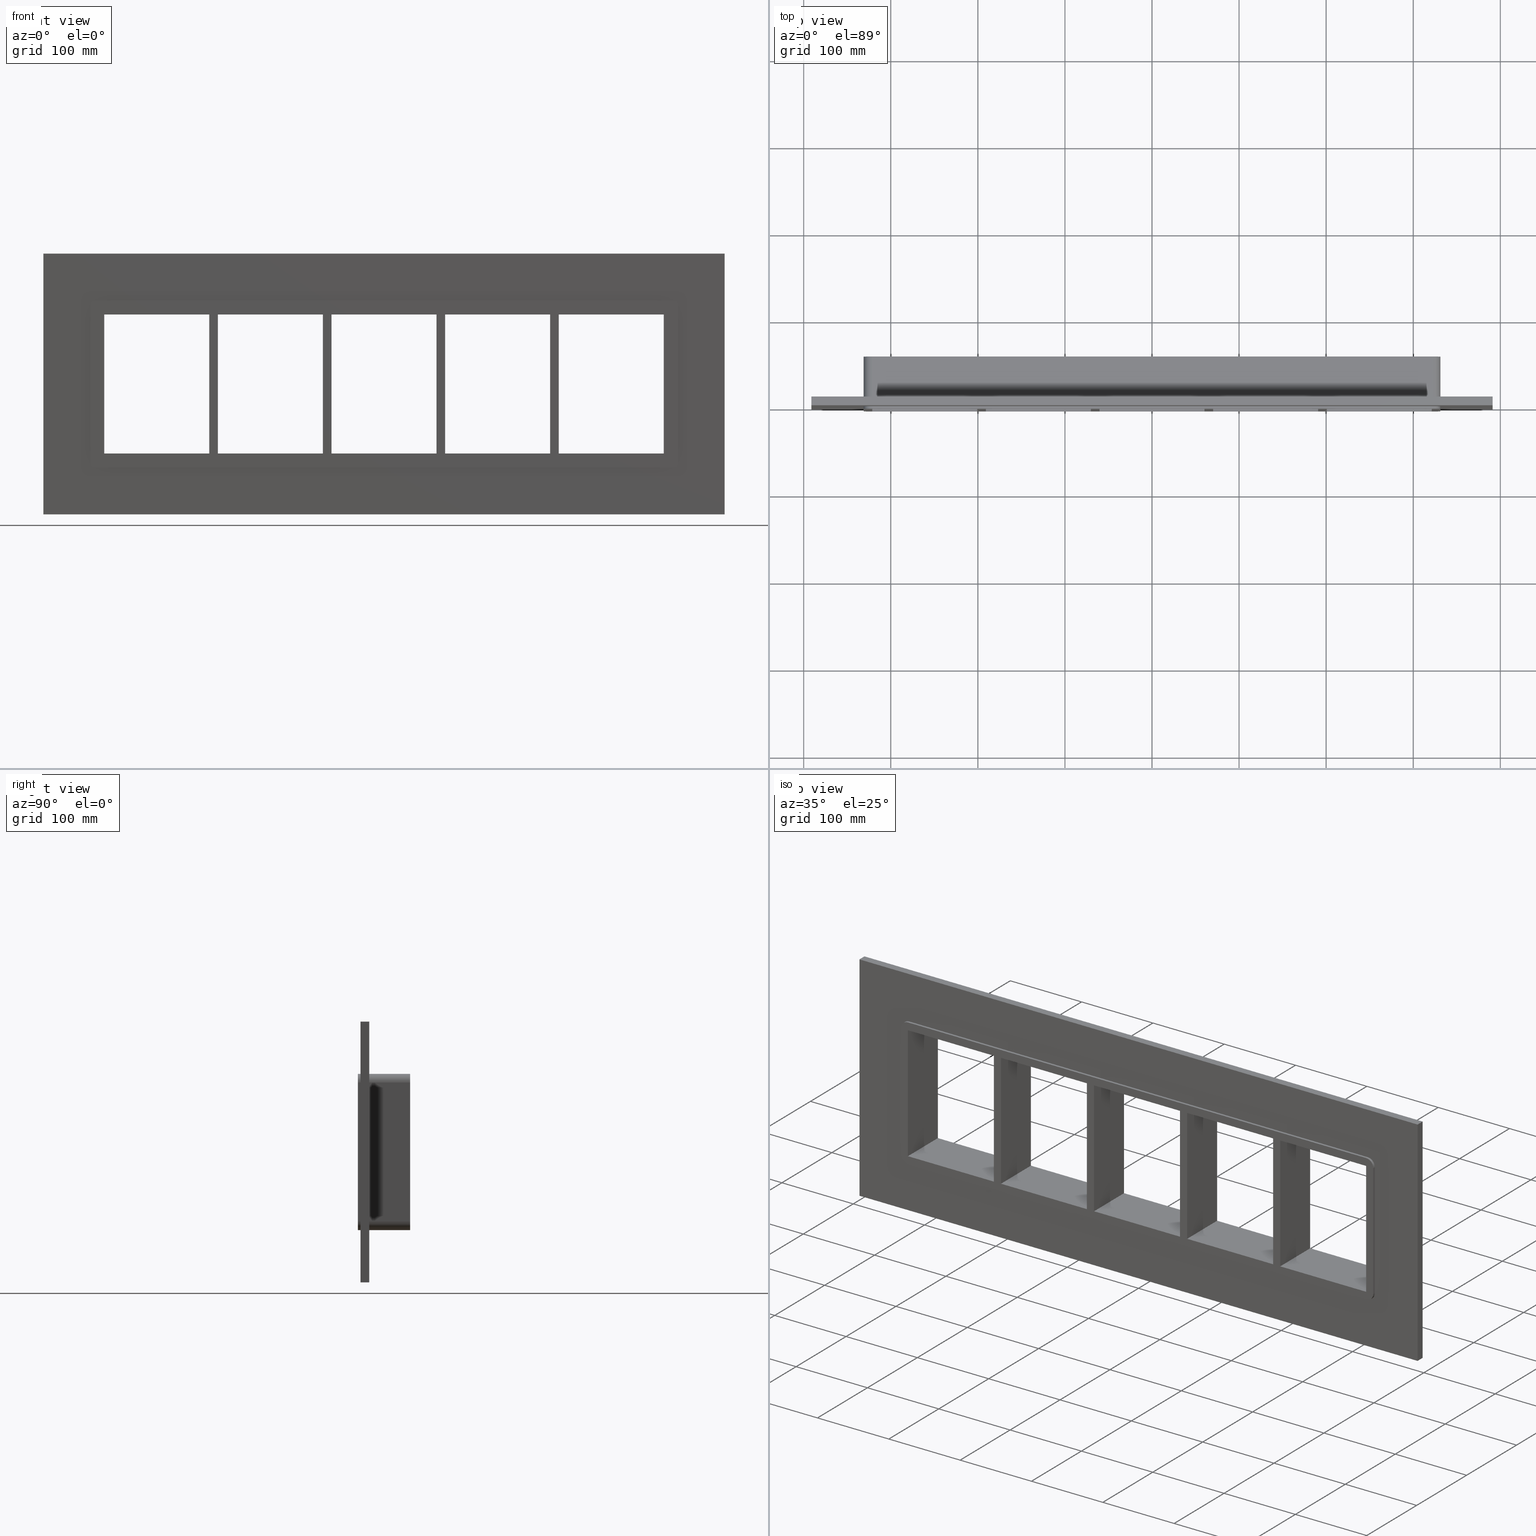
[diagram: canonical four-view strip — front | top / right | iso, engineering-drawing reading convention]
A machine part, canonical four-view strip (front | top / right | iso — engineering-drawing reading convention). The complete STEP part file that produces these views, byte-faithful:
ISO-10303-21;
HEADER;
/****************************************************************
 * Generated by software with PDElib inside                    *
 * PDElib Version v51a, created Wed 11/30/2011                  *
 * ITI Transcendata (http://www.transcendata.com/)              *
 ****************************************************************/
FILE_DESCRIPTION((''),'2;1');
FILE_NAME('C:\\RoxtecConfigurator\\CreatedFiles\\STEP\\SF4X5.stp','2013-06-28T14:22:44',(''),(''),'Autodesk Inventor 2013','Autodesk Inventor 2013','');
FILE_SCHEMA(('AUTOMOTIVE_DESIGN { 1 0 10303 214 1 1 1 1 }'));
ENDSEC;
DATA;
#5=APPLICATION_CONTEXT('automotive design');
#6=APPLICATION_PROTOCOL_DEFINITION('International Standard','automotive_design',2001,#5);
#7=PRODUCT_CONTEXT('',#5,'mechanical');
#8=PRODUCT('roxtec S_SF_G','roxtec S_SF_G',$,(#7));
#9=PRODUCT_RELATED_PRODUCT_CATEGORY('part',$,(#8));
#10=PRODUCT_DEFINITION_FORMATION('',$,#8);
#11=PRODUCT_DEFINITION_CONTEXT('part definition',#5,'design');
#12=PRODUCT_DEFINITION('',$,#10,#11);
#18=(NAMED_UNIT(*)PLANE_ANGLE_UNIT()SI_UNIT($,.RADIAN.));
#19=DIMENSIONAL_EXPONENTS(0.0,0.0,0.0,0.0,0.0,0.0,0.0);
#20=PLANE_ANGLE_MEASURE_WITH_UNIT(PLANE_ANGLE_MEASURE(0.0174532925),#18);
#24=(CONVERSION_BASED_UNIT('DEGREE',#20)NAMED_UNIT(#19)PLANE_ANGLE_UNIT());
#28=(NAMED_UNIT(*)SI_UNIT($,.STERADIAN.)SOLID_ANGLE_UNIT());
#32=(LENGTH_UNIT()NAMED_UNIT(*)SI_UNIT(.MILLI.,.METRE.));
#34=UNCERTAINTY_MEASURE_WITH_UNIT(LENGTH_MEASURE(0.01),#32,'DISTANCE_ACCURACY_VALUE','');
#36=(GEOMETRIC_REPRESENTATION_CONTEXT(3)GLOBAL_UNCERTAINTY_ASSIGNED_CONTEXT((#34))GLOBAL_UNIT_ASSIGNED_CONTEXT((#24,#28,#32))REPRESENTATION_CONTEXT('None','None'));
#37=AXIS2_PLACEMENT_3D('',#38,#39,#40);
#38=CARTESIAN_POINT('',(0.0,0.0,0.0));
#39=DIRECTION('',(0.0,0.0,1.0));
#40=DIRECTION('',(1.0,0.0,0.0));
#41=SHAPE_REPRESENTATION('',(#37),#36);
#42=PRODUCT_DEFINITION_SHAPE('','',#12);
#43=SHAPE_DEFINITION_REPRESENTATION(#42,#41);
#49=(NAMED_UNIT(*)PLANE_ANGLE_UNIT()SI_UNIT($,.RADIAN.));
#50=DIMENSIONAL_EXPONENTS(0.0,0.0,0.0,0.0,0.0,0.0,0.0);
#51=PLANE_ANGLE_MEASURE_WITH_UNIT(PLANE_ANGLE_MEASURE(0.0174532925),#49);
#55=(CONVERSION_BASED_UNIT('DEGREE',#51)NAMED_UNIT(#50)PLANE_ANGLE_UNIT());
#59=(NAMED_UNIT(*)SI_UNIT($,.STERADIAN.)SOLID_ANGLE_UNIT());
#63=(LENGTH_UNIT()NAMED_UNIT(*)SI_UNIT(.MILLI.,.METRE.));
#65=UNCERTAINTY_MEASURE_WITH_UNIT(LENGTH_MEASURE(0.000001),#63,'DISTANCE_ACCURACY_VALUE','');
#67=(GEOMETRIC_REPRESENTATION_CONTEXT(3)GLOBAL_UNCERTAINTY_ASSIGNED_CONTEXT((#65))GLOBAL_UNIT_ASSIGNED_CONTEXT((#55,#59,#63))REPRESENTATION_CONTEXT('','3D'));
#68=CARTESIAN_POINT('',(190.74999999999875,-3.0,-79.75));
#69=DIRECTION('',(-1.0,0.0,0.0));
#70=DIRECTION('',(0.0,0.0,1.0));
#71=AXIS2_PLACEMENT_3D('',#68,#69,#70);
#72=PLANE('',#71);
#73=CARTESIAN_POINT('',(190.74999999999875,-3.0,-79.75));
#74=VERTEX_POINT('',#73);
#75=CARTESIAN_POINT('',(190.74999999999872,-3.0,79.750000000000028));
#76=VERTEX_POINT('',#75);
#77=CARTESIAN_POINT('',(190.74999999999875,-3.0,-79.75));
#78=DIRECTION('',(0.0,0.0,1.0));
#79=VECTOR('',#78,159.50000000000003);
#80=LINE('',#77,#79);
#81=EDGE_CURVE('',#74,#76,#80,.T.);
#82=ORIENTED_EDGE('',*,*,#81,.T.);
#83=CARTESIAN_POINT('',(190.74999999999872,57.0,79.750000000000028));
#84=VERTEX_POINT('',#83);
#85=CARTESIAN_POINT('',(190.74999999999872,57.000000000000007,79.750000000000014));
#86=DIRECTION('',(0.0,-1.0,0.0));
#87=VECTOR('',#86,60.000000000000007);
#88=LINE('',#85,#87);
#89=EDGE_CURVE('',#84,#76,#88,.T.);
#90=ORIENTED_EDGE('',*,*,#89,.F.);
#91=CARTESIAN_POINT('',(190.74999999999875,57.0,-79.75));
#92=VERTEX_POINT('',#91);
#93=CARTESIAN_POINT('',(190.74999999999875,57.0,-79.75));
#94=DIRECTION('',(0.0,0.0,1.0));
#95=VECTOR('',#94,159.50000000000003);
#96=LINE('',#93,#95);
#97=EDGE_CURVE('',#92,#84,#96,.T.);
#98=ORIENTED_EDGE('',*,*,#97,.F.);
#99=CARTESIAN_POINT('',(190.74999999999875,-3.0,-79.75));
#100=DIRECTION('',(0.0,1.0,0.0));
#101=VECTOR('',#100,60.000000000000007);
#102=LINE('',#99,#101);
#103=EDGE_CURVE('',#74,#92,#102,.T.);
#104=ORIENTED_EDGE('',*,*,#103,.F.);
#105=EDGE_LOOP('',(#82,#90,#98,#104));
#106=FACE_OUTER_BOUND('',#105,.T.);
#107=ADVANCED_FACE('',(#106),#72,.T.);
#108=CARTESIAN_POINT('',(200.74999999999278,-3.0,79.750000000000028));
#109=DIRECTION('',(1.0,0.0,0.0));
#110=DIRECTION('',(0.0,0.0,-1.0));
#111=AXIS2_PLACEMENT_3D('',#108,#109,#110);
#112=PLANE('',#111);
#113=CARTESIAN_POINT('',(200.74999999999278,-3.0,79.750000000000028));
#114=VERTEX_POINT('',#113);
#115=CARTESIAN_POINT('',(200.74999999999278,-3.0,-79.749999999984055));
#116=VERTEX_POINT('',#115);
#117=CARTESIAN_POINT('',(200.74999999999278,-3.0,79.750000000000028));
#118=DIRECTION('',(0.0,0.0,-1.0));
#119=VECTOR('',#118,159.49999999998408);
#120=LINE('',#117,#119);
#121=EDGE_CURVE('',#114,#116,#120,.T.);
#122=ORIENTED_EDGE('',*,*,#121,.T.);
#123=CARTESIAN_POINT('',(200.74999999999278,57.0,-79.749999999984055));
#124=VERTEX_POINT('',#123);
#125=CARTESIAN_POINT('',(200.74999999999278,57.000000000000007,-79.75));
#126=DIRECTION('',(0.0,-1.0,0.0));
#127=VECTOR('',#126,60.000000000000007);
#128=LINE('',#125,#127);
#129=EDGE_CURVE('',#124,#116,#128,.T.);
#130=ORIENTED_EDGE('',*,*,#129,.F.);
#131=CARTESIAN_POINT('',(200.74999999999278,57.0,79.750000000000028));
#132=VERTEX_POINT('',#131);
#133=CARTESIAN_POINT('',(200.74999999999278,57.0,79.750000000000028));
#134=DIRECTION('',(0.0,0.0,-1.0));
#135=VECTOR('',#134,159.49999999998408);
#136=LINE('',#133,#135);
#137=EDGE_CURVE('',#132,#124,#136,.T.);
#138=ORIENTED_EDGE('',*,*,#137,.F.);
#139=CARTESIAN_POINT('',(200.74999999999278,-3.0,79.750000000000014));
#140=DIRECTION('',(0.0,1.0,0.0));
#141=VECTOR('',#140,60.000000000000007);
#142=LINE('',#139,#141);
#143=EDGE_CURVE('',#114,#132,#142,.T.);
#144=ORIENTED_EDGE('',*,*,#143,.F.);
#145=EDGE_LOOP('',(#122,#130,#138,#144));
#146=FACE_OUTER_BOUND('',#145,.T.);
#147=ADVANCED_FACE('',(#146),#112,.T.);
#148=CARTESIAN_POINT('',(60.249999999998707,-3.0,-79.75));
#149=DIRECTION('',(-1.0,0.0,0.0));
#150=DIRECTION('',(0.0,0.0,1.0));
#151=AXIS2_PLACEMENT_3D('',#148,#149,#150);
#152=PLANE('',#151);
#153=CARTESIAN_POINT('',(60.249999999998707,-3.0,-79.75));
#154=VERTEX_POINT('',#153);
#155=CARTESIAN_POINT('',(60.249999999998671,-3.0,79.750000000000028));
#156=VERTEX_POINT('',#155);
#157=CARTESIAN_POINT('',(60.249999999998707,-3.0,-79.75));
#158=DIRECTION('',(0.0,0.0,1.0));
#159=VECTOR('',#158,159.50000000000003);
#160=LINE('',#157,#159);
#161=EDGE_CURVE('',#154,#156,#160,.T.);
#162=ORIENTED_EDGE('',*,*,#161,.T.);
#163=CARTESIAN_POINT('',(60.249999999998671,57.0,79.750000000000028));
#164=VERTEX_POINT('',#163);
#165=CARTESIAN_POINT('',(60.249999999998693,57.000000000000007,79.750000000000014));
#166=DIRECTION('',(0.0,-1.0,0.0));
#167=VECTOR('',#166,60.000000000000007);
#168=LINE('',#165,#167);
#169=EDGE_CURVE('',#164,#156,#168,.T.);
#170=ORIENTED_EDGE('',*,*,#169,.F.);
#171=CARTESIAN_POINT('',(60.249999999998707,57.0,-79.75));
#172=VERTEX_POINT('',#171);
#173=CARTESIAN_POINT('',(60.249999999998707,57.0,-79.75));
#174=DIRECTION('',(0.0,0.0,1.0));
#175=VECTOR('',#174,159.50000000000003);
#176=LINE('',#173,#175);
#177=EDGE_CURVE('',#172,#164,#176,.T.);
#178=ORIENTED_EDGE('',*,*,#177,.F.);
#179=CARTESIAN_POINT('',(60.249999999998707,-3.0,-79.75));
#180=DIRECTION('',(0.0,1.0,0.0));
#181=VECTOR('',#180,60.000000000000007);
#182=LINE('',#179,#181);
#183=EDGE_CURVE('',#154,#172,#182,.T.);
#184=ORIENTED_EDGE('',*,*,#183,.F.);
#185=EDGE_LOOP('',(#162,#170,#178,#184));
#186=FACE_OUTER_BOUND('',#185,.T.);
#187=ADVANCED_FACE('',(#186),#152,.T.);
#188=CARTESIAN_POINT('',(70.249999999992738,-3.0,79.750000000000028));
#189=DIRECTION('',(1.0,0.0,0.0));
#190=DIRECTION('',(0.0,0.0,-1.0));
#191=AXIS2_PLACEMENT_3D('',#188,#189,#190);
#192=PLANE('',#191);
#193=CARTESIAN_POINT('',(70.249999999992738,-3.0,79.750000000000028));
#194=VERTEX_POINT('',#193);
#195=CARTESIAN_POINT('',(70.249999999992738,-3.0,-79.749999999984055));
#196=VERTEX_POINT('',#195);
#197=CARTESIAN_POINT('',(70.249999999992738,-3.0,79.750000000000028));
#198=DIRECTION('',(0.0,0.0,-1.0));
#199=VECTOR('',#198,159.49999999998408);
#200=LINE('',#197,#199);
#201=EDGE_CURVE('',#194,#196,#200,.T.);
#202=ORIENTED_EDGE('',*,*,#201,.T.);
#203=CARTESIAN_POINT('',(70.249999999992738,57.0,-79.749999999984055));
#204=VERTEX_POINT('',#203);
#205=CARTESIAN_POINT('',(70.249999999992738,57.000000000000007,-79.75));
#206=DIRECTION('',(0.0,-1.0,0.0));
#207=VECTOR('',#206,60.000000000000007);
#208=LINE('',#205,#207);
#209=EDGE_CURVE('',#204,#196,#208,.T.);
#210=ORIENTED_EDGE('',*,*,#209,.F.);
#211=CARTESIAN_POINT('',(70.249999999992738,57.0,79.750000000000028));
#212=VERTEX_POINT('',#211);
#213=CARTESIAN_POINT('',(70.249999999992738,57.0,79.750000000000028));
#214=DIRECTION('',(0.0,0.0,-1.0));
#215=VECTOR('',#214,159.49999999998408);
#216=LINE('',#213,#215);
#217=EDGE_CURVE('',#212,#204,#216,.T.);
#218=ORIENTED_EDGE('',*,*,#217,.F.);
#219=CARTESIAN_POINT('',(70.249999999992738,-3.0,79.750000000000014));
#220=DIRECTION('',(0.0,1.0,0.0));
#221=VECTOR('',#220,60.000000000000007);
#222=LINE('',#219,#221);
#223=EDGE_CURVE('',#194,#212,#222,.T.);
#224=ORIENTED_EDGE('',*,*,#223,.F.);
#225=EDGE_LOOP('',(#202,#210,#218,#224));
#226=FACE_OUTER_BOUND('',#225,.T.);
#227=ADVANCED_FACE('',(#226),#192,.T.);
#228=CARTESIAN_POINT('',(-70.250000000001307,-3.0,-79.75));
#229=DIRECTION('',(-1.0,0.0,0.0));
#230=DIRECTION('',(0.0,0.0,1.0));
#231=AXIS2_PLACEMENT_3D('',#228,#229,#230);
#232=PLANE('',#231);
#233=CARTESIAN_POINT('',(-70.250000000001307,-3.0,-79.75));
#234=VERTEX_POINT('',#233);
#235=CARTESIAN_POINT('',(-70.250000000001336,-3.0,79.750000000000028));
#236=VERTEX_POINT('',#235);
#237=CARTESIAN_POINT('',(-70.250000000001307,-3.0,-79.75));
#238=DIRECTION('',(0.0,0.0,1.0));
#239=VECTOR('',#238,159.50000000000003);
#240=LINE('',#237,#239);
#241=EDGE_CURVE('',#234,#236,#240,.T.);
#242=ORIENTED_EDGE('',*,*,#241,.T.);
#243=CARTESIAN_POINT('',(-70.250000000001336,57.0,79.750000000000028));
#244=VERTEX_POINT('',#243);
#245=CARTESIAN_POINT('',(-70.250000000001322,57.000000000000007,79.750000000000014));
#246=DIRECTION('',(0.0,-1.0,0.0));
#247=VECTOR('',#246,60.000000000000007);
#248=LINE('',#245,#247);
#249=EDGE_CURVE('',#244,#236,#248,.T.);
#250=ORIENTED_EDGE('',*,*,#249,.F.);
#251=CARTESIAN_POINT('',(-70.250000000001307,57.0,-79.75));
#252=VERTEX_POINT('',#251);
#253=CARTESIAN_POINT('',(-70.250000000001307,57.0,-79.75));
#254=DIRECTION('',(0.0,0.0,1.0));
#255=VECTOR('',#254,159.50000000000003);
#256=LINE('',#253,#255);
#257=EDGE_CURVE('',#252,#244,#256,.T.);
#258=ORIENTED_EDGE('',*,*,#257,.F.);
#259=CARTESIAN_POINT('',(-70.250000000001322,-3.0,-79.75));
#260=DIRECTION('',(0.0,1.0,0.0));
#261=VECTOR('',#260,60.000000000000007);
#262=LINE('',#259,#261);
#263=EDGE_CURVE('',#234,#252,#262,.T.);
#264=ORIENTED_EDGE('',*,*,#263,.F.);
#265=EDGE_LOOP('',(#242,#250,#258,#264));
#266=FACE_OUTER_BOUND('',#265,.T.);
#267=ADVANCED_FACE('',(#266),#232,.T.);
#268=CARTESIAN_POINT('',(-60.250000000007269,-3.0,79.750000000000028));
#269=DIRECTION('',(1.0,0.0,0.0));
#270=DIRECTION('',(0.0,0.0,-1.0));
#271=AXIS2_PLACEMENT_3D('',#268,#269,#270);
#272=PLANE('',#271);
#273=CARTESIAN_POINT('',(-60.250000000007269,-3.0,79.750000000000028));
#274=VERTEX_POINT('',#273);
#275=CARTESIAN_POINT('',(-60.250000000007269,-3.0,-79.749999999984055));
#276=VERTEX_POINT('',#275);
#277=CARTESIAN_POINT('',(-60.250000000007269,-3.0,79.750000000000028));
#278=DIRECTION('',(0.0,0.0,-1.0));
#279=VECTOR('',#278,159.49999999998408);
#280=LINE('',#277,#279);
#281=EDGE_CURVE('',#274,#276,#280,.T.);
#282=ORIENTED_EDGE('',*,*,#281,.T.);
#283=CARTESIAN_POINT('',(-60.250000000007269,57.0,-79.749999999984055));
#284=VERTEX_POINT('',#283);
#285=CARTESIAN_POINT('',(-60.25000000000729,57.000000000000007,-79.75));
#286=DIRECTION('',(0.0,-1.0,0.0));
#287=VECTOR('',#286,60.000000000000007);
#288=LINE('',#285,#287);
#289=EDGE_CURVE('',#284,#276,#288,.T.);
#290=ORIENTED_EDGE('',*,*,#289,.F.);
#291=CARTESIAN_POINT('',(-60.250000000007269,57.0,79.750000000000028));
#292=VERTEX_POINT('',#291);
#293=CARTESIAN_POINT('',(-60.250000000007269,57.0,79.750000000000028));
#294=DIRECTION('',(0.0,0.0,-1.0));
#295=VECTOR('',#294,159.49999999998408);
#296=LINE('',#293,#295);
#297=EDGE_CURVE('',#292,#284,#296,.T.);
#298=ORIENTED_EDGE('',*,*,#297,.F.);
#299=CARTESIAN_POINT('',(-60.250000000007248,-3.0,79.750000000000014));
#300=DIRECTION('',(0.0,1.0,0.0));
#301=VECTOR('',#300,60.000000000000007);
#302=LINE('',#299,#301);
#303=EDGE_CURVE('',#274,#292,#302,.T.);
#304=ORIENTED_EDGE('',*,*,#303,.F.);
#305=EDGE_LOOP('',(#282,#290,#298,#304));
#306=FACE_OUTER_BOUND('',#305,.T.);
#307=ADVANCED_FACE('',(#306),#272,.T.);
#308=CARTESIAN_POINT('',(321.25,0.0,-79.75));
#309=DIRECTION('',(0.0,0.0,-1.0));
#310=DIRECTION('',(-1.0,0.0,0.0));
#311=AXIS2_PLACEMENT_3D('',#308,#309,#310);
#312=PLANE('',#311);
#313=ORIENTED_EDGE('',*,*,#263,.T.);
#314=CARTESIAN_POINT('',(-190.75000000000728,57.0,-79.749999999984055));
#315=VERTEX_POINT('',#314);
#316=CARTESIAN_POINT('',(-190.75000000000725,57.0,-79.75));
#317=DIRECTION('',(1.0,0.0,0.0));
#318=VECTOR('',#317,120.50000000000594);
#319=LINE('',#316,#318);
#320=EDGE_CURVE('',#315,#252,#319,.T.);
#321=ORIENTED_EDGE('',*,*,#320,.F.);
#322=CARTESIAN_POINT('',(-190.75000000000728,-3.0,-79.749999999984055));
#323=VERTEX_POINT('',#322);
#324=CARTESIAN_POINT('',(-190.75000000000728,57.000000000000007,-79.75));
#325=DIRECTION('',(0.0,-1.0,0.0));
#326=VECTOR('',#325,60.000000000000007);
#327=LINE('',#324,#326);
#328=EDGE_CURVE('',#315,#323,#327,.T.);
#329=ORIENTED_EDGE('',*,*,#328,.T.);
#330=CARTESIAN_POINT('',(-70.250000000001307,-3.0,-79.75));
#331=DIRECTION('',(-1.0,0.0,0.0));
#332=VECTOR('',#331,120.50000000000594);
#333=LINE('',#330,#332);
#334=EDGE_CURVE('',#234,#323,#333,.T.);
#335=ORIENTED_EDGE('',*,*,#334,.F.);
#336=EDGE_LOOP('',(#313,#321,#329,#335));
#337=FACE_OUTER_BOUND('',#336,.T.);
#338=ADVANCED_FACE('',(#337),#312,.F.);
#339=CARTESIAN_POINT('',(321.25,0.0,-79.75));
#340=DIRECTION('',(0.0,0.0,-1.0));
#341=DIRECTION('',(-1.0,0.0,0.0));
#342=AXIS2_PLACEMENT_3D('',#339,#340,#341);
#343=PLANE('',#342);
#344=ORIENTED_EDGE('',*,*,#183,.T.);
#345=CARTESIAN_POINT('',(-60.250000000007276,57.0,-79.75));
#346=DIRECTION('',(1.0,0.0,0.0));
#347=VECTOR('',#346,120.50000000000597);
#348=LINE('',#345,#347);
#349=EDGE_CURVE('',#284,#172,#348,.T.);
#350=ORIENTED_EDGE('',*,*,#349,.F.);
#351=ORIENTED_EDGE('',*,*,#289,.T.);
#352=CARTESIAN_POINT('',(60.249999999998693,-3.0,-79.75));
#353=DIRECTION('',(-1.0,0.0,0.0));
#354=VECTOR('',#353,120.50000000000597);
#355=LINE('',#352,#354);
#356=EDGE_CURVE('',#154,#276,#355,.T.);
#357=ORIENTED_EDGE('',*,*,#356,.F.);
#358=EDGE_LOOP('',(#344,#350,#351,#357));
#359=FACE_OUTER_BOUND('',#358,.T.);
#360=ADVANCED_FACE('',(#359),#343,.F.);
#361=CARTESIAN_POINT('',(321.25,0.0,-79.75));
#362=DIRECTION('',(0.0,0.0,-1.0));
#363=DIRECTION('',(-1.0,0.0,0.0));
#364=AXIS2_PLACEMENT_3D('',#361,#362,#363);
#365=PLANE('',#364);
#366=ORIENTED_EDGE('',*,*,#103,.T.);
#367=CARTESIAN_POINT('',(70.249999999992724,57.0,-79.75));
#368=DIRECTION('',(1.0,0.0,0.0));
#369=VECTOR('',#368,120.50000000000603);
#370=LINE('',#367,#369);
#371=EDGE_CURVE('',#204,#92,#370,.T.);
#372=ORIENTED_EDGE('',*,*,#371,.F.);
#373=ORIENTED_EDGE('',*,*,#209,.T.);
#374=CARTESIAN_POINT('',(190.74999999999875,-3.0,-79.75));
#375=DIRECTION('',(-1.0,0.0,0.0));
#376=VECTOR('',#375,120.50000000000603);
#377=LINE('',#374,#376);
#378=EDGE_CURVE('',#74,#196,#377,.T.);
#379=ORIENTED_EDGE('',*,*,#378,.F.);
#380=EDGE_LOOP('',(#366,#372,#373,#379));
#381=FACE_OUTER_BOUND('',#380,.T.);
#382=ADVANCED_FACE('',(#381),#365,.F.);
#383=CARTESIAN_POINT('',(321.25,0.0,-79.75));
#384=DIRECTION('',(0.0,0.0,-1.0));
#385=DIRECTION('',(-1.0,0.0,0.0));
#386=AXIS2_PLACEMENT_3D('',#383,#384,#385);
#387=PLANE('',#386);
#388=ORIENTED_EDGE('',*,*,#129,.T.);
#389=CARTESIAN_POINT('',(321.25,-3.0,-79.75));
#390=VERTEX_POINT('',#389);
#391=CARTESIAN_POINT('',(321.25,-3.0,-79.75));
#392=DIRECTION('',(-1.0,0.0,0.0));
#393=VECTOR('',#392,120.50000000000722);
#394=LINE('',#391,#393);
#395=EDGE_CURVE('',#390,#116,#394,.T.);
#396=ORIENTED_EDGE('',*,*,#395,.F.);
#397=CARTESIAN_POINT('',(321.25,57.0,-79.75));
#398=VERTEX_POINT('',#397);
#399=CARTESIAN_POINT('',(321.25,57.0,-79.75));
#400=DIRECTION('',(0.0,-1.0,0.0));
#401=VECTOR('',#400,60.0);
#402=LINE('',#399,#401);
#403=EDGE_CURVE('',#398,#390,#402,.T.);
#404=ORIENTED_EDGE('',*,*,#403,.F.);
#405=CARTESIAN_POINT('',(200.74999999999278,57.0,-79.75));
#406=DIRECTION('',(1.0,0.0,0.0));
#407=VECTOR('',#406,120.50000000000722);
#408=LINE('',#405,#407);
#409=EDGE_CURVE('',#124,#398,#408,.T.);
#410=ORIENTED_EDGE('',*,*,#409,.F.);
#411=EDGE_LOOP('',(#388,#396,#404,#410));
#412=FACE_OUTER_BOUND('',#411,.T.);
#413=ADVANCED_FACE('',(#412),#387,.F.);
#414=CARTESIAN_POINT('',(-321.24999999999994,0.0,79.750000000000014));
#415=DIRECTION('',(0.0,0.0,1.0));
#416=DIRECTION('',(1.0,0.0,0.0));
#417=AXIS2_PLACEMENT_3D('',#414,#415,#416);
#418=PLANE('',#417);
#419=ORIENTED_EDGE('',*,*,#249,.T.);
#420=CARTESIAN_POINT('',(-190.75000000000728,-3.0,79.750000000000028));
#421=VERTEX_POINT('',#420);
#422=CARTESIAN_POINT('',(-190.75000000000728,-3.0,79.750000000000014));
#423=DIRECTION('',(1.0,0.0,0.0));
#424=VECTOR('',#423,120.50000000000593);
#425=LINE('',#422,#424);
#426=EDGE_CURVE('',#421,#236,#425,.T.);
#427=ORIENTED_EDGE('',*,*,#426,.F.);
#428=CARTESIAN_POINT('',(-190.75000000000728,57.0,79.750000000000028));
#429=VERTEX_POINT('',#428);
#430=CARTESIAN_POINT('',(-190.75000000000728,-3.0,79.750000000000014));
#431=DIRECTION('',(0.0,1.0,0.0));
#432=VECTOR('',#431,60.000000000000007);
#433=LINE('',#430,#432);
#434=EDGE_CURVE('',#421,#429,#433,.T.);
#435=ORIENTED_EDGE('',*,*,#434,.T.);
#436=CARTESIAN_POINT('',(-70.25000000000135,57.0,79.750000000000014));
#437=DIRECTION('',(-1.0,0.0,0.0));
#438=VECTOR('',#437,120.50000000000593);
#439=LINE('',#436,#438);
#440=EDGE_CURVE('',#244,#429,#439,.T.);
#441=ORIENTED_EDGE('',*,*,#440,.F.);
#442=EDGE_LOOP('',(#419,#427,#435,#441));
#443=FACE_OUTER_BOUND('',#442,.T.);
#444=ADVANCED_FACE('',(#443),#418,.F.);
#445=CARTESIAN_POINT('',(-321.24999999999994,0.0,79.750000000000014));
#446=DIRECTION('',(0.0,0.0,1.0));
#447=DIRECTION('',(1.0,0.0,0.0));
#448=AXIS2_PLACEMENT_3D('',#445,#446,#447);
#449=PLANE('',#448);
#450=ORIENTED_EDGE('',*,*,#169,.T.);
#451=CARTESIAN_POINT('',(-60.250000000007276,-3.0,79.750000000000014));
#452=DIRECTION('',(1.0,0.0,0.0));
#453=VECTOR('',#452,120.50000000000594);
#454=LINE('',#451,#453);
#455=EDGE_CURVE('',#274,#156,#454,.T.);
#456=ORIENTED_EDGE('',*,*,#455,.F.);
#457=ORIENTED_EDGE('',*,*,#303,.T.);
#458=CARTESIAN_POINT('',(60.249999999998664,57.0,79.750000000000014));
#459=DIRECTION('',(-1.0,0.0,0.0));
#460=VECTOR('',#459,120.50000000000594);
#461=LINE('',#458,#460);
#462=EDGE_CURVE('',#164,#292,#461,.T.);
#463=ORIENTED_EDGE('',*,*,#462,.F.);
#464=EDGE_LOOP('',(#450,#456,#457,#463));
#465=FACE_OUTER_BOUND('',#464,.T.);
#466=ADVANCED_FACE('',(#465),#449,.F.);
#467=CARTESIAN_POINT('',(-321.24999999999994,0.0,79.750000000000014));
#468=DIRECTION('',(0.0,0.0,1.0));
#469=DIRECTION('',(1.0,0.0,0.0));
#470=AXIS2_PLACEMENT_3D('',#467,#468,#469);
#471=PLANE('',#470);
#472=ORIENTED_EDGE('',*,*,#143,.T.);
#473=CARTESIAN_POINT('',(321.25,57.0,79.750000000000028));
#474=VERTEX_POINT('',#473);
#475=CARTESIAN_POINT('',(321.25,57.0,79.750000000000014));
#476=DIRECTION('',(-1.0,0.0,0.0));
#477=VECTOR('',#476,120.50000000000722);
#478=LINE('',#475,#477);
#479=EDGE_CURVE('',#474,#132,#478,.T.);
#480=ORIENTED_EDGE('',*,*,#479,.F.);
#481=CARTESIAN_POINT('',(321.25,-3.0,79.750000000000028));
#482=VERTEX_POINT('',#481);
#483=CARTESIAN_POINT('',(321.25,-3.0,79.750000000000014));
#484=DIRECTION('',(0.0,1.0,0.0));
#485=VECTOR('',#484,60.0);
#486=LINE('',#483,#485);
#487=EDGE_CURVE('',#482,#474,#486,.T.);
#488=ORIENTED_EDGE('',*,*,#487,.F.);
#489=CARTESIAN_POINT('',(200.74999999999278,-3.0,79.750000000000014));
#490=DIRECTION('',(1.0,0.0,0.0));
#491=VECTOR('',#490,120.50000000000722);
#492=LINE('',#489,#491);
#493=EDGE_CURVE('',#114,#482,#492,.T.);
#494=ORIENTED_EDGE('',*,*,#493,.F.);
#495=EDGE_LOOP('',(#472,#480,#488,#494));
#496=FACE_OUTER_BOUND('',#495,.T.);
#497=ADVANCED_FACE('',(#496),#471,.F.);
#498=CARTESIAN_POINT('',(-321.24999999999994,0.0,79.750000000000014));
#499=DIRECTION('',(0.0,0.0,1.0));
#500=DIRECTION('',(1.0,0.0,0.0));
#501=AXIS2_PLACEMENT_3D('',#498,#499,#500);
#502=PLANE('',#501);
#503=ORIENTED_EDGE('',*,*,#89,.T.);
#504=CARTESIAN_POINT('',(70.249999999992724,-3.0,79.750000000000014));
#505=DIRECTION('',(1.0,0.0,0.0));
#506=VECTOR('',#505,120.50000000000597);
#507=LINE('',#504,#506);
#508=EDGE_CURVE('',#194,#76,#507,.T.);
#509=ORIENTED_EDGE('',*,*,#508,.F.);
#510=ORIENTED_EDGE('',*,*,#223,.T.);
#511=CARTESIAN_POINT('',(190.74999999999869,57.0,79.750000000000014));
#512=DIRECTION('',(-1.0,0.0,0.0));
#513=VECTOR('',#512,120.50000000000597);
#514=LINE('',#511,#513);
#515=EDGE_CURVE('',#84,#212,#514,.T.);
#516=ORIENTED_EDGE('',*,*,#515,.F.);
#517=EDGE_LOOP('',(#503,#509,#510,#516));
#518=FACE_OUTER_BOUND('',#517,.T.);
#519=ADVANCED_FACE('',(#518),#502,.F.);
#520=CARTESIAN_POINT('',(-200.75000000000131,-3.0,-79.75));
#521=DIRECTION('',(-1.0,0.0,0.0));
#522=DIRECTION('',(0.0,0.0,1.0));
#523=AXIS2_PLACEMENT_3D('',#520,#521,#522);
#524=PLANE('',#523);
#525=CARTESIAN_POINT('',(-200.75000000000131,-3.0,-79.75));
#526=VERTEX_POINT('',#525);
#527=CARTESIAN_POINT('',(-200.75000000000134,-3.0,79.750000000000028));
#528=VERTEX_POINT('',#527);
#529=CARTESIAN_POINT('',(-200.75000000000131,-3.0,-79.75));
#530=DIRECTION('',(0.0,0.0,1.0));
#531=VECTOR('',#530,159.50000000000003);
#532=LINE('',#529,#531);
#533=EDGE_CURVE('',#526,#528,#532,.T.);
#534=ORIENTED_EDGE('',*,*,#533,.T.);
#535=CARTESIAN_POINT('',(-200.75000000000134,57.0,79.750000000000028));
#536=VERTEX_POINT('',#535);
#537=CARTESIAN_POINT('',(-200.75000000000131,57.000000000000007,79.750000000000014));
#538=DIRECTION('',(0.0,-1.0,0.0));
#539=VECTOR('',#538,60.000000000000007);
#540=LINE('',#537,#539);
#541=EDGE_CURVE('',#536,#528,#540,.T.);
#542=ORIENTED_EDGE('',*,*,#541,.F.);
#543=CARTESIAN_POINT('',(-200.75000000000131,57.0,-79.75));
#544=VERTEX_POINT('',#543);
#545=CARTESIAN_POINT('',(-200.75000000000131,57.0,-79.75));
#546=DIRECTION('',(0.0,0.0,1.0));
#547=VECTOR('',#546,159.50000000000003);
#548=LINE('',#545,#547);
#549=EDGE_CURVE('',#544,#536,#548,.T.);
#550=ORIENTED_EDGE('',*,*,#549,.F.);
#551=CARTESIAN_POINT('',(-200.75000000000131,-3.0,-79.75));
#552=DIRECTION('',(0.0,1.0,0.0));
#553=VECTOR('',#552,60.000000000000007);
#554=LINE('',#551,#553);
#555=EDGE_CURVE('',#526,#544,#554,.T.);
#556=ORIENTED_EDGE('',*,*,#555,.F.);
#557=EDGE_LOOP('',(#534,#542,#550,#556));
#558=FACE_OUTER_BOUND('',#557,.T.);
#559=ADVANCED_FACE('',(#558),#524,.T.);
#560=CARTESIAN_POINT('',(-190.75000000000728,-3.0,79.750000000000028));
#561=DIRECTION('',(1.0,0.0,0.0));
#562=DIRECTION('',(0.0,0.0,-1.0));
#563=AXIS2_PLACEMENT_3D('',#560,#561,#562);
#564=PLANE('',#563);
#565=CARTESIAN_POINT('',(-190.75000000000728,-3.0,79.750000000000028));
#566=DIRECTION('',(0.0,0.0,-1.0));
#567=VECTOR('',#566,159.49999999998408);
#568=LINE('',#565,#567);
#569=EDGE_CURVE('',#421,#323,#568,.T.);
#570=ORIENTED_EDGE('',*,*,#569,.T.);
#571=ORIENTED_EDGE('',*,*,#328,.F.);
#572=CARTESIAN_POINT('',(-190.75000000000728,57.0,79.750000000000028));
#573=DIRECTION('',(0.0,0.0,-1.0));
#574=VECTOR('',#573,159.49999999998408);
#575=LINE('',#572,#574);
#576=EDGE_CURVE('',#429,#315,#575,.T.);
#577=ORIENTED_EDGE('',*,*,#576,.F.);
#578=ORIENTED_EDGE('',*,*,#434,.F.);
#579=EDGE_LOOP('',(#570,#571,#577,#578));
#580=FACE_OUTER_BOUND('',#579,.T.);
#581=ADVANCED_FACE('',(#580),#564,.T.);
#582=CARTESIAN_POINT('',(321.25,0.0,-79.75));
#583=DIRECTION('',(0.0,0.0,-1.0));
#584=DIRECTION('',(-1.0,0.0,0.0));
#585=AXIS2_PLACEMENT_3D('',#582,#583,#584);
#586=PLANE('',#585);
#587=ORIENTED_EDGE('',*,*,#555,.T.);
#588=CARTESIAN_POINT('',(-321.25,57.0,-79.75));
#589=VERTEX_POINT('',#588);
#590=CARTESIAN_POINT('',(-321.25,57.0,-79.75));
#591=DIRECTION('',(1.0,0.0,0.0));
#592=VECTOR('',#591,120.49999999999872);
#593=LINE('',#590,#592);
#594=EDGE_CURVE('',#589,#544,#593,.T.);
#595=ORIENTED_EDGE('',*,*,#594,.F.);
#596=CARTESIAN_POINT('',(-321.25,-3.0,-79.75));
#597=VERTEX_POINT('',#596);
#598=CARTESIAN_POINT('',(-321.24999999999994,-3.0,-79.75));
#599=DIRECTION('',(0.0,1.0,0.0));
#600=VECTOR('',#599,60.0);
#601=LINE('',#598,#600);
#602=EDGE_CURVE('',#597,#589,#601,.T.);
#603=ORIENTED_EDGE('',*,*,#602,.F.);
#604=CARTESIAN_POINT('',(-200.75000000000128,-3.0,-79.75));
#605=DIRECTION('',(-1.0,0.0,0.0));
#606=VECTOR('',#605,120.49999999999872);
#607=LINE('',#604,#606);
#608=EDGE_CURVE('',#526,#597,#607,.T.);
#609=ORIENTED_EDGE('',*,*,#608,.F.);
#610=EDGE_LOOP('',(#587,#595,#603,#609));
#611=FACE_OUTER_BOUND('',#610,.T.);
#612=ADVANCED_FACE('',(#611),#586,.F.);
#613=CARTESIAN_POINT('',(-321.24999999999994,0.0,79.750000000000014));
#614=DIRECTION('',(0.0,0.0,1.0));
#615=DIRECTION('',(1.0,0.0,0.0));
#616=AXIS2_PLACEMENT_3D('',#613,#614,#615);
#617=PLANE('',#616);
#618=ORIENTED_EDGE('',*,*,#541,.T.);
#619=CARTESIAN_POINT('',(-321.25,-3.0,79.750000000000028));
#620=VERTEX_POINT('',#619);
#621=CARTESIAN_POINT('',(-321.25,-3.0,79.750000000000014));
#622=DIRECTION('',(1.0,0.0,0.0));
#623=VECTOR('',#622,120.49999999999864);
#624=LINE('',#621,#623);
#625=EDGE_CURVE('',#620,#528,#624,.T.);
#626=ORIENTED_EDGE('',*,*,#625,.F.);
#627=CARTESIAN_POINT('',(-321.25,57.0,79.750000000000028));
#628=VERTEX_POINT('',#627);
#629=CARTESIAN_POINT('',(-321.24999999999994,-3.0,79.750000000000014));
#630=DIRECTION('',(0.0,1.0,0.0));
#631=VECTOR('',#630,60.0);
#632=LINE('',#629,#631);
#633=EDGE_CURVE('',#620,#628,#632,.T.);
#634=ORIENTED_EDGE('',*,*,#633,.T.);
#635=CARTESIAN_POINT('',(-200.75000000000136,57.0,79.750000000000014));
#636=DIRECTION('',(-1.0,0.0,0.0));
#637=VECTOR('',#636,120.49999999999864);
#638=LINE('',#635,#637);
#639=EDGE_CURVE('',#536,#628,#638,.T.);
#640=ORIENTED_EDGE('',*,*,#639,.F.);
#641=EDGE_LOOP('',(#618,#626,#634,#640));
#642=FACE_OUTER_BOUND('',#641,.T.);
#643=ADVANCED_FACE('',(#642),#617,.F.);
#644=CARTESIAN_POINT('',(0.0,10.0,-2.609948E-014));
#645=DIRECTION('',(0.0,1.0,0.0));
#646=DIRECTION('',(0.0,0.0,1.0));
#647=AXIS2_PLACEMENT_3D('',#644,#645,#646);
#648=PLANE('',#647);
#649=CARTESIAN_POINT('',(-391.25,10.0,149.75));
#650=VERTEX_POINT('',#649);
#651=CARTESIAN_POINT('',(391.25,10.0,149.75));
#652=VERTEX_POINT('',#651);
#653=CARTESIAN_POINT('',(-391.25,10.0,149.75));
#654=DIRECTION('',(1.0,0.0,0.0));
#655=VECTOR('',#654,782.5);
#656=LINE('',#653,#655);
#657=EDGE_CURVE('',#650,#652,#656,.T.);
#658=ORIENTED_EDGE('',*,*,#657,.T.);
#659=CARTESIAN_POINT('',(391.25,10.0,-149.75000000000006));
#660=VERTEX_POINT('',#659);
#661=CARTESIAN_POINT('',(391.25,10.0,149.75));
#662=DIRECTION('',(0.0,0.0,-1.0));
#663=VECTOR('',#662,299.50000000000006);
#664=LINE('',#661,#663);
#665=EDGE_CURVE('',#652,#660,#664,.T.);
#666=ORIENTED_EDGE('',*,*,#665,.T.);
#667=CARTESIAN_POINT('',(-391.25,10.0,-149.75000000000006));
#668=VERTEX_POINT('',#667);
#669=CARTESIAN_POINT('',(391.25,10.0,-149.75000000000006));
#670=DIRECTION('',(-1.0,0.0,0.0));
#671=VECTOR('',#670,782.5);
#672=LINE('',#669,#671);
#673=EDGE_CURVE('',#660,#668,#672,.T.);
#674=ORIENTED_EDGE('',*,*,#673,.T.);
#675=CARTESIAN_POINT('',(-391.25,10.0,-149.75000000000006));
#676=DIRECTION('',(0.0,0.0,1.0));
#677=VECTOR('',#676,299.50000000000006);
#678=LINE('',#675,#677);
#679=EDGE_CURVE('',#668,#650,#678,.T.);
#680=ORIENTED_EDGE('',*,*,#679,.T.);
#681=EDGE_LOOP('',(#658,#666,#674,#680));
#682=FACE_OUTER_BOUND('',#681,.T.);
#683=CARTESIAN_POINT('',(-321.24999999999994,10.0,-89.750000000000014));
#684=VERTEX_POINT('',#683);
#685=CARTESIAN_POINT('',(-331.24999999999994,10.0,-79.750000000000014));
#686=VERTEX_POINT('',#685);
#687=CARTESIAN_POINT('',(-321.24999999999994,10.0,-79.750000000000014));
#688=DIRECTION('',(0.0,1.0,0.0));
#689=DIRECTION('',(-0.707106781186547,0.0,-0.707106781186547));
#690=AXIS2_PLACEMENT_3D('',#687,#688,#689);
#691=CIRCLE('',#690,9.999999999999998);
#692=EDGE_CURVE('',#684,#686,#691,.T.);
#693=ORIENTED_EDGE('',*,*,#692,.F.);
#694=CARTESIAN_POINT('',(321.25000000000006,10.0,-89.750000000000014));
#695=VERTEX_POINT('',#694);
#696=CARTESIAN_POINT('',(321.25000000000006,10.0,-89.750000000000014));
#697=DIRECTION('',(-1.0,0.0,0.0));
#698=VECTOR('',#697,642.5);
#699=LINE('',#696,#698);
#700=EDGE_CURVE('',#695,#684,#699,.T.);
#701=ORIENTED_EDGE('',*,*,#700,.F.);
#702=CARTESIAN_POINT('',(331.25000000000006,10.0,-79.750000000000014));
#703=VERTEX_POINT('',#702);
#704=CARTESIAN_POINT('',(321.25000000000006,10.0,-79.750000000000014));
#705=DIRECTION('',(0.0,1.0,0.0));
#706=DIRECTION('',(0.707106781186547,0.0,-0.707106781186547));
#707=AXIS2_PLACEMENT_3D('',#704,#705,#706);
#708=CIRCLE('',#707,9.999999999999998);
#709=EDGE_CURVE('',#703,#695,#708,.T.);
#710=ORIENTED_EDGE('',*,*,#709,.F.);
#711=CARTESIAN_POINT('',(331.25000000000006,10.0,79.750000000000014));
#712=VERTEX_POINT('',#711);
#713=CARTESIAN_POINT('',(331.25000000000006,10.0,79.750000000000014));
#714=DIRECTION('',(0.0,0.0,-1.0));
#715=VECTOR('',#714,159.50000000000006);
#716=LINE('',#713,#715);
#717=EDGE_CURVE('',#712,#703,#716,.T.);
#718=ORIENTED_EDGE('',*,*,#717,.F.);
#719=CARTESIAN_POINT('',(321.25000000000006,10.0,89.750000000000014));
#720=VERTEX_POINT('',#719);
#721=CARTESIAN_POINT('',(321.25000000000006,10.0,79.750000000000014));
#722=DIRECTION('',(0.0,1.0,0.0));
#723=DIRECTION('',(0.707106781186547,0.0,0.707106781186547));
#724=AXIS2_PLACEMENT_3D('',#721,#722,#723);
#725=CIRCLE('',#724,9.999999999999998);
#726=EDGE_CURVE('',#720,#712,#725,.T.);
#727=ORIENTED_EDGE('',*,*,#726,.F.);
#728=CARTESIAN_POINT('',(-321.24999999999994,10.0,89.750000000000014));
#729=VERTEX_POINT('',#728);
#730=CARTESIAN_POINT('',(-321.24999999999994,10.0,89.750000000000014));
#731=DIRECTION('',(1.0,0.0,0.0));
#732=VECTOR('',#731,642.5);
#733=LINE('',#730,#732);
#734=EDGE_CURVE('',#729,#720,#733,.T.);
#735=ORIENTED_EDGE('',*,*,#734,.F.);
#736=CARTESIAN_POINT('',(-331.24999999999994,10.0,79.750000000000014));
#737=VERTEX_POINT('',#736);
#738=CARTESIAN_POINT('',(-321.24999999999994,10.0,79.750000000000014));
#739=DIRECTION('',(0.0,1.0,0.0));
#740=DIRECTION('',(-0.707106781186547,0.0,0.707106781186547));
#741=AXIS2_PLACEMENT_3D('',#738,#739,#740);
#742=CIRCLE('',#741,9.999999999999998);
#743=EDGE_CURVE('',#737,#729,#742,.T.);
#744=ORIENTED_EDGE('',*,*,#743,.F.);
#745=CARTESIAN_POINT('',(-331.24999999999994,10.0,-79.750000000000014));
#746=DIRECTION('',(0.0,0.0,1.0));
#747=VECTOR('',#746,159.50000000000003);
#748=LINE('',#745,#747);
#749=EDGE_CURVE('',#686,#737,#748,.T.);
#750=ORIENTED_EDGE('',*,*,#749,.F.);
#751=EDGE_LOOP('',(#693,#701,#710,#718,#727,#735,#744,#750));
#752=FACE_BOUND('',#751,.T.);
#753=ADVANCED_FACE('',(#682,#752),#648,.T.);
#754=CARTESIAN_POINT('',(0.0,0.0,-2.609948E-014));
#755=DIRECTION('',(0.0,1.0,0.0));
#756=DIRECTION('',(0.0,0.0,1.0));
#757=AXIS2_PLACEMENT_3D('',#754,#755,#756);
#758=PLANE('',#757);
#759=CARTESIAN_POINT('',(-391.25,0.0,149.75));
#760=VERTEX_POINT('',#759);
#761=CARTESIAN_POINT('',(391.25,0.0,149.75));
#762=VERTEX_POINT('',#761);
#763=CARTESIAN_POINT('',(-391.25,0.0,149.75));
#764=DIRECTION('',(1.0,0.0,0.0));
#765=VECTOR('',#764,782.5);
#766=LINE('',#763,#765);
#767=EDGE_CURVE('',#760,#762,#766,.T.);
#768=ORIENTED_EDGE('',*,*,#767,.F.);
#769=CARTESIAN_POINT('',(-391.25,0.0,-149.75000000000006));
#770=VERTEX_POINT('',#769);
#771=CARTESIAN_POINT('',(-391.25,0.0,-149.75000000000006));
#772=DIRECTION('',(0.0,0.0,1.0));
#773=VECTOR('',#772,299.50000000000006);
#774=LINE('',#771,#773);
#775=EDGE_CURVE('',#770,#760,#774,.T.);
#776=ORIENTED_EDGE('',*,*,#775,.F.);
#777=CARTESIAN_POINT('',(391.25,0.0,-149.75000000000006));
#778=VERTEX_POINT('',#777);
#779=CARTESIAN_POINT('',(391.25,0.0,-149.75000000000006));
#780=DIRECTION('',(-1.0,0.0,0.0));
#781=VECTOR('',#780,782.5);
#782=LINE('',#779,#781);
#783=EDGE_CURVE('',#778,#770,#782,.T.);
#784=ORIENTED_EDGE('',*,*,#783,.F.);
#785=CARTESIAN_POINT('',(391.25,0.0,149.75));
#786=DIRECTION('',(0.0,0.0,-1.0));
#787=VECTOR('',#786,299.50000000000006);
#788=LINE('',#785,#787);
#789=EDGE_CURVE('',#762,#778,#788,.T.);
#790=ORIENTED_EDGE('',*,*,#789,.F.);
#791=EDGE_LOOP('',(#768,#776,#784,#790));
#792=FACE_OUTER_BOUND('',#791,.T.);
#793=CARTESIAN_POINT('',(-331.24999999999994,0.0,-79.750000000000014));
#794=VERTEX_POINT('',#793);
#795=CARTESIAN_POINT('',(-321.24999999999994,0.0,-89.750000000000014));
#796=VERTEX_POINT('',#795);
#797=CARTESIAN_POINT('',(-321.24999999999994,0.0,-79.750000000000014));
#798=DIRECTION('',(0.0,-1.0,0.0));
#799=DIRECTION('',(-0.707106781186547,0.0,-0.707106781186547));
#800=AXIS2_PLACEMENT_3D('',#797,#798,#799);
#801=CIRCLE('',#800,9.999999999999998);
#802=EDGE_CURVE('',#794,#796,#801,.T.);
#803=ORIENTED_EDGE('',*,*,#802,.F.);
#804=CARTESIAN_POINT('',(-331.24999999999994,0.0,79.750000000000014));
#805=VERTEX_POINT('',#804);
#806=CARTESIAN_POINT('',(-331.24999999999994,0.0,79.750000000000014));
#807=DIRECTION('',(0.0,0.0,-1.0));
#808=VECTOR('',#807,159.50000000000003);
#809=LINE('',#806,#808);
#810=EDGE_CURVE('',#805,#794,#809,.T.);
#811=ORIENTED_EDGE('',*,*,#810,.F.);
#812=CARTESIAN_POINT('',(-321.24999999999994,0.0,89.750000000000014));
#813=VERTEX_POINT('',#812);
#814=CARTESIAN_POINT('',(-321.24999999999994,0.0,79.750000000000014));
#815=DIRECTION('',(0.0,-1.0,0.0));
#816=DIRECTION('',(-0.707106781186547,0.0,0.707106781186547));
#817=AXIS2_PLACEMENT_3D('',#814,#815,#816);
#818=CIRCLE('',#817,9.999999999999998);
#819=EDGE_CURVE('',#813,#805,#818,.T.);
#820=ORIENTED_EDGE('',*,*,#819,.F.);
#821=CARTESIAN_POINT('',(321.25000000000006,0.0,89.750000000000014));
#822=VERTEX_POINT('',#821);
#823=CARTESIAN_POINT('',(321.25,0.0,89.750000000000014));
#824=DIRECTION('',(-1.0,0.0,0.0));
#825=VECTOR('',#824,642.5);
#826=LINE('',#823,#825);
#827=EDGE_CURVE('',#822,#813,#826,.T.);
#828=ORIENTED_EDGE('',*,*,#827,.F.);
#829=CARTESIAN_POINT('',(331.25000000000006,0.0,79.750000000000014));
#830=VERTEX_POINT('',#829);
#831=CARTESIAN_POINT('',(321.25000000000006,0.0,79.750000000000014));
#832=DIRECTION('',(0.0,-1.0,0.0));
#833=DIRECTION('',(0.707106781186547,0.0,0.707106781186547));
#834=AXIS2_PLACEMENT_3D('',#831,#832,#833);
#835=CIRCLE('',#834,9.999999999999998);
#836=EDGE_CURVE('',#830,#822,#835,.T.);
#837=ORIENTED_EDGE('',*,*,#836,.F.);
#838=CARTESIAN_POINT('',(331.25000000000006,0.0,-79.750000000000014));
#839=VERTEX_POINT('',#838);
#840=CARTESIAN_POINT('',(331.25000000000006,0.0,-79.750000000000028));
#841=DIRECTION('',(0.0,0.0,1.0));
#842=VECTOR('',#841,159.50000000000006);
#843=LINE('',#840,#842);
#844=EDGE_CURVE('',#839,#830,#843,.T.);
#845=ORIENTED_EDGE('',*,*,#844,.F.);
#846=CARTESIAN_POINT('',(321.25000000000006,0.0,-89.750000000000014));
#847=VERTEX_POINT('',#846);
#848=CARTESIAN_POINT('',(321.25000000000006,0.0,-79.750000000000014));
#849=DIRECTION('',(0.0,-1.0,0.0));
#850=DIRECTION('',(0.707106781186547,0.0,-0.707106781186547));
#851=AXIS2_PLACEMENT_3D('',#848,#849,#850);
#852=CIRCLE('',#851,9.999999999999998);
#853=EDGE_CURVE('',#847,#839,#852,.T.);
#854=ORIENTED_EDGE('',*,*,#853,.F.);
#855=CARTESIAN_POINT('',(-321.25,0.0,-89.750000000000014));
#856=DIRECTION('',(1.0,0.0,0.0));
#857=VECTOR('',#856,642.5);
#858=LINE('',#855,#857);
#859=EDGE_CURVE('',#796,#847,#858,.T.);
#860=ORIENTED_EDGE('',*,*,#859,.F.);
#861=EDGE_LOOP('',(#803,#811,#820,#828,#837,#845,#854,#860));
#862=FACE_BOUND('',#861,.T.);
#863=ADVANCED_FACE('',(#792,#862),#758,.F.);
#864=CARTESIAN_POINT('',(-391.25,0.0,-149.75000000000006));
#865=DIRECTION('',(-1.0,0.0,0.0));
#866=DIRECTION('',(0.0,0.0,1.0));
#867=AXIS2_PLACEMENT_3D('',#864,#865,#866);
#868=PLANE('',#867);
#869=ORIENTED_EDGE('',*,*,#775,.T.);
#870=CARTESIAN_POINT('',(-391.25,0.0,149.75));
#871=DIRECTION('',(0.0,1.0,0.0));
#872=VECTOR('',#871,10.0);
#873=LINE('',#870,#872);
#874=EDGE_CURVE('',#760,#650,#873,.T.);
#875=ORIENTED_EDGE('',*,*,#874,.T.);
#876=ORIENTED_EDGE('',*,*,#679,.F.);
#877=CARTESIAN_POINT('',(-391.25,0.0,-149.75000000000006));
#878=DIRECTION('',(0.0,1.0,0.0));
#879=VECTOR('',#878,10.0);
#880=LINE('',#877,#879);
#881=EDGE_CURVE('',#770,#668,#880,.T.);
#882=ORIENTED_EDGE('',*,*,#881,.F.);
#883=EDGE_LOOP('',(#869,#875,#876,#882));
#884=FACE_OUTER_BOUND('',#883,.T.);
#885=ADVANCED_FACE('',(#884),#868,.T.);
#886=CARTESIAN_POINT('',(391.25,0.0,-149.75000000000006));
#887=DIRECTION('',(0.0,0.0,-1.0));
#888=DIRECTION('',(-1.0,0.0,0.0));
#889=AXIS2_PLACEMENT_3D('',#886,#887,#888);
#890=PLANE('',#889);
#891=ORIENTED_EDGE('',*,*,#783,.T.);
#892=ORIENTED_EDGE('',*,*,#881,.T.);
#893=ORIENTED_EDGE('',*,*,#673,.F.);
#894=CARTESIAN_POINT('',(391.25,0.0,-149.75000000000006));
#895=DIRECTION('',(0.0,1.0,0.0));
#896=VECTOR('',#895,10.0);
#897=LINE('',#894,#896);
#898=EDGE_CURVE('',#778,#660,#897,.T.);
#899=ORIENTED_EDGE('',*,*,#898,.F.);
#900=EDGE_LOOP('',(#891,#892,#893,#899));
#901=FACE_OUTER_BOUND('',#900,.T.);
#902=ADVANCED_FACE('',(#901),#890,.T.);
#903=CARTESIAN_POINT('',(391.25,0.0,149.75));
#904=DIRECTION('',(1.0,0.0,0.0));
#905=DIRECTION('',(0.0,0.0,-1.0));
#906=AXIS2_PLACEMENT_3D('',#903,#904,#905);
#907=PLANE('',#906);
#908=ORIENTED_EDGE('',*,*,#789,.T.);
#909=ORIENTED_EDGE('',*,*,#898,.T.);
#910=ORIENTED_EDGE('',*,*,#665,.F.);
#911=CARTESIAN_POINT('',(391.25,0.0,149.75));
#912=DIRECTION('',(0.0,1.0,0.0));
#913=VECTOR('',#912,10.0);
#914=LINE('',#911,#913);
#915=EDGE_CURVE('',#762,#652,#914,.T.);
#916=ORIENTED_EDGE('',*,*,#915,.F.);
#917=EDGE_LOOP('',(#908,#909,#910,#916));
#918=FACE_OUTER_BOUND('',#917,.T.);
#919=ADVANCED_FACE('',(#918),#907,.T.);
#920=CARTESIAN_POINT('',(-391.25,0.0,149.75));
#921=DIRECTION('',(0.0,0.0,1.0));
#922=DIRECTION('',(1.0,0.0,0.0));
#923=AXIS2_PLACEMENT_3D('',#920,#921,#922);
#924=PLANE('',#923);
#925=ORIENTED_EDGE('',*,*,#767,.T.);
#926=ORIENTED_EDGE('',*,*,#915,.T.);
#927=ORIENTED_EDGE('',*,*,#657,.F.);
#928=ORIENTED_EDGE('',*,*,#874,.F.);
#929=EDGE_LOOP('',(#925,#926,#927,#928));
#930=FACE_OUTER_BOUND('',#929,.T.);
#931=ADVANCED_FACE('',(#930),#924,.T.);
#932=CARTESIAN_POINT('',(-321.24999999999994,0.0,-79.75));
#933=DIRECTION('',(-1.0,0.0,0.0));
#934=DIRECTION('',(0.0,0.0,1.0));
#935=AXIS2_PLACEMENT_3D('',#932,#933,#934);
#936=PLANE('',#935);
#937=ORIENTED_EDGE('',*,*,#602,.T.);
#938=CARTESIAN_POINT('',(-321.24999999999994,57.0,79.750000000000028));
#939=DIRECTION('',(0.0,0.0,-1.0));
#940=VECTOR('',#939,159.50000000000003);
#941=LINE('',#938,#940);
#942=EDGE_CURVE('',#628,#589,#941,.T.);
#943=ORIENTED_EDGE('',*,*,#942,.F.);
#944=ORIENTED_EDGE('',*,*,#633,.F.);
#945=CARTESIAN_POINT('',(-321.24999999999994,-3.0,-79.75));
#946=DIRECTION('',(0.0,0.0,1.0));
#947=VECTOR('',#946,159.50000000000003);
#948=LINE('',#945,#947);
#949=EDGE_CURVE('',#597,#620,#948,.T.);
#950=ORIENTED_EDGE('',*,*,#949,.F.);
#951=EDGE_LOOP('',(#937,#943,#944,#950));
#952=FACE_OUTER_BOUND('',#951,.T.);
#953=ADVANCED_FACE('',(#952),#936,.F.);
#954=CARTESIAN_POINT('',(321.25000000000006,0.0,79.750000000000014));
#955=DIRECTION('',(0.0,-1.0,0.0));
#956=DIRECTION('',(0.707106781186547,0.0,0.707106781186547));
#957=AXIS2_PLACEMENT_3D('',#954,#955,#956);
#958=CYLINDRICAL_SURFACE('',#957,10.0);
#959=ORIENTED_EDGE('',*,*,#836,.T.);
#960=CARTESIAN_POINT('',(321.25000000000006,-3.0,89.750000000000014));
#961=VERTEX_POINT('',#960);
#962=CARTESIAN_POINT('',(321.25000000000006,0.0,89.750000000000014));
#963=DIRECTION('',(0.0,-1.0,0.0));
#964=VECTOR('',#963,3.0);
#965=LINE('',#962,#964);
#966=EDGE_CURVE('',#822,#961,#965,.T.);
#967=ORIENTED_EDGE('',*,*,#966,.T.);
#968=CARTESIAN_POINT('',(331.25000000000006,-3.0,79.750000000000014));
#969=VERTEX_POINT('',#968);
#970=CARTESIAN_POINT('',(321.25000000000006,-3.0,79.750000000000014));
#971=DIRECTION('',(0.0,1.0,0.0));
#972=DIRECTION('',(0.707106781186547,0.0,0.707106781186547));
#973=AXIS2_PLACEMENT_3D('',#970,#971,#972);
#974=CIRCLE('',#973,9.999999999999998);
#975=EDGE_CURVE('',#961,#969,#974,.T.);
#976=ORIENTED_EDGE('',*,*,#975,.T.);
#977=CARTESIAN_POINT('',(331.25000000000006,-3.0,79.750000000000014));
#978=DIRECTION('',(0.0,1.0,0.0));
#979=VECTOR('',#978,3.0);
#980=LINE('',#977,#979);
#981=EDGE_CURVE('',#969,#830,#980,.T.);
#982=ORIENTED_EDGE('',*,*,#981,.T.);
#983=EDGE_LOOP('',(#959,#967,#976,#982));
#984=FACE_OUTER_BOUND('',#983,.T.);
#985=ADVANCED_FACE('',(#984),#958,.T.);
#986=CARTESIAN_POINT('',(321.25000000000006,0.0,79.750000000000014));
#987=DIRECTION('',(0.0,-1.0,0.0));
#988=DIRECTION('',(0.707106781186547,0.0,0.707106781186547));
#989=AXIS2_PLACEMENT_3D('',#986,#987,#988);
#990=CYLINDRICAL_SURFACE('',#989,10.0);
#991=ORIENTED_EDGE('',*,*,#726,.T.);
#992=CARTESIAN_POINT('',(331.25000000000006,57.0,79.750000000000014));
#993=VERTEX_POINT('',#992);
#994=CARTESIAN_POINT('',(331.25000000000006,10.0,79.750000000000014));
#995=DIRECTION('',(0.0,1.0,0.0));
#996=VECTOR('',#995,47.0);
#997=LINE('',#994,#996);
#998=EDGE_CURVE('',#712,#993,#997,.T.);
#999=ORIENTED_EDGE('',*,*,#998,.T.);
#1000=CARTESIAN_POINT('',(321.25000000000006,57.0,89.750000000000014));
#1001=VERTEX_POINT('',#1000);
#1002=CARTESIAN_POINT('',(321.25000000000006,57.0,79.750000000000014));
#1003=DIRECTION('',(0.0,-1.0,0.0));
#1004=DIRECTION('',(0.707106781186547,0.0,0.707106781186547));
#1005=AXIS2_PLACEMENT_3D('',#1002,#1003,#1004);
#1006=CIRCLE('',#1005,9.999999999999998);
#1007=EDGE_CURVE('',#993,#1001,#1006,.T.);
#1008=ORIENTED_EDGE('',*,*,#1007,.T.);
#1009=CARTESIAN_POINT('',(321.25000000000006,57.0,89.750000000000014));
#1010=DIRECTION('',(0.0,-1.0,0.0));
#1011=VECTOR('',#1010,47.0);
#1012=LINE('',#1009,#1011);
#1013=EDGE_CURVE('',#1001,#720,#1012,.T.);
#1014=ORIENTED_EDGE('',*,*,#1013,.T.);
#1015=EDGE_LOOP('',(#991,#999,#1008,#1014));
#1016=FACE_OUTER_BOUND('',#1015,.T.);
#1017=ADVANCED_FACE('',(#1016),#990,.T.);
#1018=CARTESIAN_POINT('',(331.25000000000006,0.0,89.750000000000014));
#1019=DIRECTION('',(1.0,0.0,0.0));
#1020=DIRECTION('',(0.0,0.0,-1.0));
#1021=AXIS2_PLACEMENT_3D('',#1018,#1019,#1020);
#1022=PLANE('',#1021);
#1023=ORIENTED_EDGE('',*,*,#844,.T.);
#1024=ORIENTED_EDGE('',*,*,#981,.F.);
#1025=CARTESIAN_POINT('',(331.25000000000006,-3.0,-79.750000000000014));
#1026=VERTEX_POINT('',#1025);
#1027=CARTESIAN_POINT('',(331.25000000000006,-3.0,-79.750000000000014));
#1028=DIRECTION('',(0.0,0.0,1.0));
#1029=VECTOR('',#1028,159.50000000000003);
#1030=LINE('',#1027,#1029);
#1031=EDGE_CURVE('',#1026,#969,#1030,.T.);
#1032=ORIENTED_EDGE('',*,*,#1031,.F.);
#1033=CARTESIAN_POINT('',(331.25000000000006,0.0,-79.750000000000014));
#1034=DIRECTION('',(0.0,-1.0,0.0));
#1035=VECTOR('',#1034,3.0);
#1036=LINE('',#1033,#1035);
#1037=EDGE_CURVE('',#839,#1026,#1036,.T.);
#1038=ORIENTED_EDGE('',*,*,#1037,.F.);
#1039=EDGE_LOOP('',(#1023,#1024,#1032,#1038));
#1040=FACE_OUTER_BOUND('',#1039,.T.);
#1041=ADVANCED_FACE('',(#1040),#1022,.T.);
#1042=CARTESIAN_POINT('',(331.25000000000006,0.0,89.750000000000014));
#1043=DIRECTION('',(1.0,0.0,0.0));
#1044=DIRECTION('',(0.0,0.0,-1.0));
#1045=AXIS2_PLACEMENT_3D('',#1042,#1043,#1044);
#1046=PLANE('',#1045);
#1047=ORIENTED_EDGE('',*,*,#717,.T.);
#1048=CARTESIAN_POINT('',(331.25000000000006,57.0,-79.750000000000014));
#1049=VERTEX_POINT('',#1048);
#1050=CARTESIAN_POINT('',(331.25000000000006,57.0,-79.750000000000014));
#1051=DIRECTION('',(0.0,-1.0,0.0));
#1052=VECTOR('',#1051,47.0);
#1053=LINE('',#1050,#1052);
#1054=EDGE_CURVE('',#1049,#703,#1053,.T.);
#1055=ORIENTED_EDGE('',*,*,#1054,.F.);
#1056=CARTESIAN_POINT('',(331.25000000000006,57.0,79.750000000000014));
#1057=DIRECTION('',(0.0,0.0,-1.0));
#1058=VECTOR('',#1057,159.50000000000003);
#1059=LINE('',#1056,#1058);
#1060=EDGE_CURVE('',#993,#1049,#1059,.T.);
#1061=ORIENTED_EDGE('',*,*,#1060,.F.);
#1062=ORIENTED_EDGE('',*,*,#998,.F.);
#1063=EDGE_LOOP('',(#1047,#1055,#1061,#1062));
#1064=FACE_OUTER_BOUND('',#1063,.T.);
#1065=ADVANCED_FACE('',(#1064),#1046,.T.);
#1066=CARTESIAN_POINT('',(-331.24999999999994,0.0,89.750000000000014));
#1067=DIRECTION('',(0.0,0.0,1.0));
#1068=DIRECTION('',(1.0,0.0,0.0));
#1069=AXIS2_PLACEMENT_3D('',#1066,#1067,#1068);
#1070=PLANE('',#1069);
#1071=ORIENTED_EDGE('',*,*,#827,.T.);
#1072=CARTESIAN_POINT('',(-321.24999999999994,-3.0,89.750000000000014));
#1073=VERTEX_POINT('',#1072);
#1074=CARTESIAN_POINT('',(-321.24999999999994,-3.0,89.750000000000014));
#1075=DIRECTION('',(0.0,1.0,0.0));
#1076=VECTOR('',#1075,3.0);
#1077=LINE('',#1074,#1076);
#1078=EDGE_CURVE('',#1073,#813,#1077,.T.);
#1079=ORIENTED_EDGE('',*,*,#1078,.F.);
#1080=CARTESIAN_POINT('',(321.25000000000006,-3.0,89.750000000000014));
#1081=DIRECTION('',(-1.0,0.0,0.0));
#1082=VECTOR('',#1081,642.5);
#1083=LINE('',#1080,#1082);
#1084=EDGE_CURVE('',#961,#1073,#1083,.T.);
#1085=ORIENTED_EDGE('',*,*,#1084,.F.);
#1086=ORIENTED_EDGE('',*,*,#966,.F.);
#1087=EDGE_LOOP('',(#1071,#1079,#1085,#1086));
#1088=FACE_OUTER_BOUND('',#1087,.T.);
#1089=ADVANCED_FACE('',(#1088),#1070,.T.);
#1090=CARTESIAN_POINT('',(321.25000000000006,0.0,-79.750000000000014));
#1091=DIRECTION('',(0.0,1.0,0.0));
#1092=DIRECTION('',(0.707106781186547,0.0,-0.707106781186547));
#1093=AXIS2_PLACEMENT_3D('',#1090,#1091,#1092);
#1094=CYLINDRICAL_SURFACE('',#1093,10.0);
#1095=ORIENTED_EDGE('',*,*,#853,.T.);
#1096=ORIENTED_EDGE('',*,*,#1037,.T.);
#1097=CARTESIAN_POINT('',(321.25000000000006,-3.0,-89.750000000000014));
#1098=VERTEX_POINT('',#1097);
#1099=CARTESIAN_POINT('',(321.25000000000006,-3.0,-79.750000000000014));
#1100=DIRECTION('',(0.0,1.0,0.0));
#1101=DIRECTION('',(0.707106781186547,0.0,-0.707106781186547));
#1102=AXIS2_PLACEMENT_3D('',#1099,#1100,#1101);
#1103=CIRCLE('',#1102,9.999999999999998);
#1104=EDGE_CURVE('',#1026,#1098,#1103,.T.);
#1105=ORIENTED_EDGE('',*,*,#1104,.T.);
#1106=CARTESIAN_POINT('',(321.25000000000006,-3.0,-89.750000000000014));
#1107=DIRECTION('',(0.0,1.0,0.0));
#1108=VECTOR('',#1107,3.0);
#1109=LINE('',#1106,#1108);
#1110=EDGE_CURVE('',#1098,#847,#1109,.T.);
#1111=ORIENTED_EDGE('',*,*,#1110,.T.);
#1112=EDGE_LOOP('',(#1095,#1096,#1105,#1111));
#1113=FACE_OUTER_BOUND('',#1112,.T.);
#1114=ADVANCED_FACE('',(#1113),#1094,.T.);
#1115=CARTESIAN_POINT('',(321.25000000000006,0.0,-79.750000000000014));
#1116=DIRECTION('',(0.0,1.0,0.0));
#1117=DIRECTION('',(0.707106781186547,0.0,-0.707106781186547));
#1118=AXIS2_PLACEMENT_3D('',#1115,#1116,#1117);
#1119=CYLINDRICAL_SURFACE('',#1118,10.0);
#1120=ORIENTED_EDGE('',*,*,#709,.T.);
#1121=CARTESIAN_POINT('',(321.25000000000006,57.0,-89.750000000000014));
#1122=VERTEX_POINT('',#1121);
#1123=CARTESIAN_POINT('',(321.25000000000006,10.0,-89.750000000000014));
#1124=DIRECTION('',(0.0,1.0,0.0));
#1125=VECTOR('',#1124,47.0);
#1126=LINE('',#1123,#1125);
#1127=EDGE_CURVE('',#695,#1122,#1126,.T.);
#1128=ORIENTED_EDGE('',*,*,#1127,.T.);
#1129=CARTESIAN_POINT('',(321.25000000000006,57.0,-79.750000000000014));
#1130=DIRECTION('',(0.0,-1.0,0.0));
#1131=DIRECTION('',(0.707106781186547,0.0,-0.707106781186547));
#1132=AXIS2_PLACEMENT_3D('',#1129,#1130,#1131);
#1133=CIRCLE('',#1132,9.999999999999998);
#1134=EDGE_CURVE('',#1122,#1049,#1133,.T.);
#1135=ORIENTED_EDGE('',*,*,#1134,.T.);
#1136=ORIENTED_EDGE('',*,*,#1054,.T.);
#1137=EDGE_LOOP('',(#1120,#1128,#1135,#1136));
#1138=FACE_OUTER_BOUND('',#1137,.T.);
#1139=ADVANCED_FACE('',(#1138),#1119,.T.);
#1140=CARTESIAN_POINT('',(-321.24999999999994,0.0,79.750000000000014));
#1141=DIRECTION('',(0.0,1.0,0.0));
#1142=DIRECTION('',(-0.707106781186547,0.0,0.707106781186547));
#1143=AXIS2_PLACEMENT_3D('',#1140,#1141,#1142);
#1144=CYLINDRICAL_SURFACE('',#1143,10.0);
#1145=ORIENTED_EDGE('',*,*,#819,.T.);
#1146=CARTESIAN_POINT('',(-331.24999999999994,-3.0,79.750000000000014));
#1147=VERTEX_POINT('',#1146);
#1148=CARTESIAN_POINT('',(-331.24999999999994,0.0,79.750000000000014));
#1149=DIRECTION('',(0.0,-1.0,0.0));
#1150=VECTOR('',#1149,3.0);
#1151=LINE('',#1148,#1150);
#1152=EDGE_CURVE('',#805,#1147,#1151,.T.);
#1153=ORIENTED_EDGE('',*,*,#1152,.T.);
#1154=CARTESIAN_POINT('',(-321.24999999999994,-3.0,79.750000000000014));
#1155=DIRECTION('',(0.0,1.0,0.0));
#1156=DIRECTION('',(-0.707106781186547,0.0,0.707106781186547));
#1157=AXIS2_PLACEMENT_3D('',#1154,#1155,#1156);
#1158=CIRCLE('',#1157,9.999999999999998);
#1159=EDGE_CURVE('',#1147,#1073,#1158,.T.);
#1160=ORIENTED_EDGE('',*,*,#1159,.T.);
#1161=ORIENTED_EDGE('',*,*,#1078,.T.);
#1162=EDGE_LOOP('',(#1145,#1153,#1160,#1161));
#1163=FACE_OUTER_BOUND('',#1162,.T.);
#1164=ADVANCED_FACE('',(#1163),#1144,.T.);
#1165=CARTESIAN_POINT('',(331.25000000000006,0.0,-89.750000000000014));
#1166=DIRECTION('',(0.0,0.0,-1.0));
#1167=DIRECTION('',(-1.0,0.0,0.0));
#1168=AXIS2_PLACEMENT_3D('',#1165,#1166,#1167);
#1169=PLANE('',#1168);
#1170=ORIENTED_EDGE('',*,*,#859,.T.);
#1171=ORIENTED_EDGE('',*,*,#1110,.F.);
#1172=CARTESIAN_POINT('',(-321.24999999999994,-3.0,-89.750000000000014));
#1173=VERTEX_POINT('',#1172);
#1174=CARTESIAN_POINT('',(-321.24999999999994,-3.0,-89.750000000000014));
#1175=DIRECTION('',(1.0,0.0,0.0));
#1176=VECTOR('',#1175,642.5);
#1177=LINE('',#1174,#1176);
#1178=EDGE_CURVE('',#1173,#1098,#1177,.T.);
#1179=ORIENTED_EDGE('',*,*,#1178,.F.);
#1180=CARTESIAN_POINT('',(-321.24999999999994,0.0,-89.750000000000014));
#1181=DIRECTION('',(0.0,-1.0,0.0));
#1182=VECTOR('',#1181,3.0);
#1183=LINE('',#1180,#1182);
#1184=EDGE_CURVE('',#796,#1173,#1183,.T.);
#1185=ORIENTED_EDGE('',*,*,#1184,.F.);
#1186=EDGE_LOOP('',(#1170,#1171,#1179,#1185));
#1187=FACE_OUTER_BOUND('',#1186,.T.);
#1188=ADVANCED_FACE('',(#1187),#1169,.T.);
#1189=CARTESIAN_POINT('',(331.25000000000006,0.0,-89.750000000000014));
#1190=DIRECTION('',(0.0,0.0,-1.0));
#1191=DIRECTION('',(-1.0,0.0,0.0));
#1192=AXIS2_PLACEMENT_3D('',#1189,#1190,#1191);
#1193=PLANE('',#1192);
#1194=ORIENTED_EDGE('',*,*,#700,.T.);
#1195=CARTESIAN_POINT('',(-321.24999999999994,57.0,-89.750000000000014));
#1196=VERTEX_POINT('',#1195);
#1197=CARTESIAN_POINT('',(-321.24999999999994,57.0,-89.750000000000014));
#1198=DIRECTION('',(0.0,-1.0,0.0));
#1199=VECTOR('',#1198,47.0);
#1200=LINE('',#1197,#1199);
#1201=EDGE_CURVE('',#1196,#684,#1200,.T.);
#1202=ORIENTED_EDGE('',*,*,#1201,.F.);
#1203=CARTESIAN_POINT('',(321.25000000000006,57.0,-89.750000000000014));
#1204=DIRECTION('',(-1.0,0.0,0.0));
#1205=VECTOR('',#1204,642.5);
#1206=LINE('',#1203,#1205);
#1207=EDGE_CURVE('',#1122,#1196,#1206,.T.);
#1208=ORIENTED_EDGE('',*,*,#1207,.F.);
#1209=ORIENTED_EDGE('',*,*,#1127,.F.);
#1210=EDGE_LOOP('',(#1194,#1202,#1208,#1209));
#1211=FACE_OUTER_BOUND('',#1210,.T.);
#1212=ADVANCED_FACE('',(#1211),#1193,.T.);
#1213=CARTESIAN_POINT('',(-331.24999999999994,0.0,-89.750000000000014));
#1214=DIRECTION('',(-1.0,0.0,0.0));
#1215=DIRECTION('',(0.0,0.0,1.0));
#1216=AXIS2_PLACEMENT_3D('',#1213,#1214,#1215);
#1217=PLANE('',#1216);
#1218=ORIENTED_EDGE('',*,*,#810,.T.);
#1219=CARTESIAN_POINT('',(-331.24999999999994,-3.0,-79.750000000000014));
#1220=VERTEX_POINT('',#1219);
#1221=CARTESIAN_POINT('',(-331.24999999999994,-3.0,-79.750000000000014));
#1222=DIRECTION('',(0.0,1.0,0.0));
#1223=VECTOR('',#1222,3.0);
#1224=LINE('',#1221,#1223);
#1225=EDGE_CURVE('',#1220,#794,#1224,.T.);
#1226=ORIENTED_EDGE('',*,*,#1225,.F.);
#1227=CARTESIAN_POINT('',(-331.24999999999994,-3.0,79.750000000000014));
#1228=DIRECTION('',(0.0,0.0,-1.0));
#1229=VECTOR('',#1228,159.50000000000003);
#1230=LINE('',#1227,#1229);
#1231=EDGE_CURVE('',#1147,#1220,#1230,.T.);
#1232=ORIENTED_EDGE('',*,*,#1231,.F.);
#1233=ORIENTED_EDGE('',*,*,#1152,.F.);
#1234=EDGE_LOOP('',(#1218,#1226,#1232,#1233));
#1235=FACE_OUTER_BOUND('',#1234,.T.);
#1236=ADVANCED_FACE('',(#1235),#1217,.T.);
#1237=CARTESIAN_POINT('',(-321.24999999999994,0.0,-79.750000000000014));
#1238=DIRECTION('',(0.0,1.0,0.0));
#1239=DIRECTION('',(-0.707106781186547,0.0,-0.707106781186547));
#1240=AXIS2_PLACEMENT_3D('',#1237,#1238,#1239);
#1241=CYLINDRICAL_SURFACE('',#1240,10.0);
#1242=ORIENTED_EDGE('',*,*,#802,.T.);
#1243=ORIENTED_EDGE('',*,*,#1184,.T.);
#1244=CARTESIAN_POINT('',(-321.24999999999994,-3.0,-79.750000000000014));
#1245=DIRECTION('',(0.0,1.0,0.0));
#1246=DIRECTION('',(-0.707106781186547,0.0,-0.707106781186547));
#1247=AXIS2_PLACEMENT_3D('',#1244,#1245,#1246);
#1248=CIRCLE('',#1247,9.999999999999998);
#1249=EDGE_CURVE('',#1173,#1220,#1248,.T.);
#1250=ORIENTED_EDGE('',*,*,#1249,.T.);
#1251=ORIENTED_EDGE('',*,*,#1225,.T.);
#1252=EDGE_LOOP('',(#1242,#1243,#1250,#1251));
#1253=FACE_OUTER_BOUND('',#1252,.T.);
#1254=ADVANCED_FACE('',(#1253),#1241,.T.);
#1255=CARTESIAN_POINT('',(7.352261E-014,-3.0,0.0));
#1256=DIRECTION('',(0.0,1.0,0.0));
#1257=DIRECTION('',(0.0,0.0,1.0));
#1258=AXIS2_PLACEMENT_3D('',#1255,#1256,#1257);
#1259=PLANE('',#1258);
#1260=ORIENTED_EDGE('',*,*,#1104,.F.);
#1261=ORIENTED_EDGE('',*,*,#1031,.T.);
#1262=ORIENTED_EDGE('',*,*,#975,.F.);
#1263=ORIENTED_EDGE('',*,*,#1084,.T.);
#1264=ORIENTED_EDGE('',*,*,#1159,.F.);
#1265=ORIENTED_EDGE('',*,*,#1231,.T.);
#1266=ORIENTED_EDGE('',*,*,#1249,.F.);
#1267=ORIENTED_EDGE('',*,*,#1178,.T.);
#1268=EDGE_LOOP('',(#1260,#1261,#1262,#1263,#1264,#1265,#1266,#1267));
#1269=FACE_OUTER_BOUND('',#1268,.T.);
#1270=ORIENTED_EDGE('',*,*,#378,.T.);
#1271=ORIENTED_EDGE('',*,*,#201,.F.);
#1272=ORIENTED_EDGE('',*,*,#508,.T.);
#1273=ORIENTED_EDGE('',*,*,#81,.F.);
#1274=EDGE_LOOP('',(#1270,#1271,#1272,#1273));
#1275=FACE_BOUND('',#1274,.T.);
#1276=ORIENTED_EDGE('',*,*,#356,.T.);
#1277=ORIENTED_EDGE('',*,*,#281,.F.);
#1278=ORIENTED_EDGE('',*,*,#455,.T.);
#1279=ORIENTED_EDGE('',*,*,#161,.F.);
#1280=EDGE_LOOP('',(#1276,#1277,#1278,#1279));
#1281=FACE_BOUND('',#1280,.T.);
#1282=ORIENTED_EDGE('',*,*,#334,.T.);
#1283=ORIENTED_EDGE('',*,*,#569,.F.);
#1284=ORIENTED_EDGE('',*,*,#426,.T.);
#1285=ORIENTED_EDGE('',*,*,#241,.F.);
#1286=EDGE_LOOP('',(#1282,#1283,#1284,#1285));
#1287=FACE_BOUND('',#1286,.T.);
#1288=ORIENTED_EDGE('',*,*,#608,.T.);
#1289=ORIENTED_EDGE('',*,*,#949,.T.);
#1290=ORIENTED_EDGE('',*,*,#625,.T.);
#1291=ORIENTED_EDGE('',*,*,#533,.F.);
#1292=EDGE_LOOP('',(#1288,#1289,#1290,#1291));
#1293=FACE_BOUND('',#1292,.T.);
#1294=ORIENTED_EDGE('',*,*,#121,.F.);
#1295=ORIENTED_EDGE('',*,*,#493,.T.);
#1296=CARTESIAN_POINT('',(321.25,-3.0,79.750000000000028));
#1297=DIRECTION('',(0.0,0.0,-1.0));
#1298=VECTOR('',#1297,159.50000000000006);
#1299=LINE('',#1296,#1298);
#1300=EDGE_CURVE('',#482,#390,#1299,.T.);
#1301=ORIENTED_EDGE('',*,*,#1300,.T.);
#1302=ORIENTED_EDGE('',*,*,#395,.T.);
#1303=EDGE_LOOP('',(#1294,#1295,#1301,#1302));
#1304=FACE_BOUND('',#1303,.T.);
#1305=ADVANCED_FACE('',(#1269,#1275,#1281,#1287,#1293,#1304),#1259,.F.);
#1306=CARTESIAN_POINT('',(-321.24999999999994,0.0,-79.750000000000014));
#1307=DIRECTION('',(0.0,1.0,0.0));
#1308=DIRECTION('',(-0.707106781186547,0.0,-0.707106781186547));
#1309=AXIS2_PLACEMENT_3D('',#1306,#1307,#1308);
#1310=CYLINDRICAL_SURFACE('',#1309,10.0);
#1311=ORIENTED_EDGE('',*,*,#692,.T.);
#1312=CARTESIAN_POINT('',(-331.24999999999994,57.0,-79.750000000000014));
#1313=VERTEX_POINT('',#1312);
#1314=CARTESIAN_POINT('',(-331.24999999999994,10.0,-79.750000000000014));
#1315=DIRECTION('',(0.0,1.0,0.0));
#1316=VECTOR('',#1315,47.0);
#1317=LINE('',#1314,#1316);
#1318=EDGE_CURVE('',#686,#1313,#1317,.T.);
#1319=ORIENTED_EDGE('',*,*,#1318,.T.);
#1320=CARTESIAN_POINT('',(-321.24999999999994,57.0,-79.750000000000014));
#1321=DIRECTION('',(0.0,-1.0,0.0));
#1322=DIRECTION('',(-0.707106781186547,0.0,-0.707106781186547));
#1323=AXIS2_PLACEMENT_3D('',#1320,#1321,#1322);
#1324=CIRCLE('',#1323,9.999999999999998);
#1325=EDGE_CURVE('',#1313,#1196,#1324,.T.);
#1326=ORIENTED_EDGE('',*,*,#1325,.T.);
#1327=ORIENTED_EDGE('',*,*,#1201,.T.);
#1328=EDGE_LOOP('',(#1311,#1319,#1326,#1327));
#1329=FACE_OUTER_BOUND('',#1328,.T.);
#1330=ADVANCED_FACE('',(#1329),#1310,.T.);
#1331=CARTESIAN_POINT('',(-331.24999999999994,0.0,-89.750000000000014));
#1332=DIRECTION('',(-1.0,0.0,0.0));
#1333=DIRECTION('',(0.0,0.0,1.0));
#1334=AXIS2_PLACEMENT_3D('',#1331,#1332,#1333);
#1335=PLANE('',#1334);
#1336=ORIENTED_EDGE('',*,*,#749,.T.);
#1337=CARTESIAN_POINT('',(-331.24999999999994,57.0,79.750000000000014));
#1338=VERTEX_POINT('',#1337);
#1339=CARTESIAN_POINT('',(-331.24999999999994,57.0,79.750000000000014));
#1340=DIRECTION('',(0.0,-1.0,0.0));
#1341=VECTOR('',#1340,47.0);
#1342=LINE('',#1339,#1341);
#1343=EDGE_CURVE('',#1338,#737,#1342,.T.);
#1344=ORIENTED_EDGE('',*,*,#1343,.F.);
#1345=CARTESIAN_POINT('',(-331.24999999999994,57.0,-79.750000000000014));
#1346=DIRECTION('',(0.0,0.0,1.0));
#1347=VECTOR('',#1346,159.50000000000003);
#1348=LINE('',#1345,#1347);
#1349=EDGE_CURVE('',#1313,#1338,#1348,.T.);
#1350=ORIENTED_EDGE('',*,*,#1349,.F.);
#1351=ORIENTED_EDGE('',*,*,#1318,.F.);
#1352=EDGE_LOOP('',(#1336,#1344,#1350,#1351));
#1353=FACE_OUTER_BOUND('',#1352,.T.);
#1354=ADVANCED_FACE('',(#1353),#1335,.T.);
#1355=CARTESIAN_POINT('',(-321.24999999999994,0.0,79.750000000000014));
#1356=DIRECTION('',(0.0,1.0,0.0));
#1357=DIRECTION('',(-0.707106781186547,0.0,0.707106781186547));
#1358=AXIS2_PLACEMENT_3D('',#1355,#1356,#1357);
#1359=CYLINDRICAL_SURFACE('',#1358,10.0);
#1360=ORIENTED_EDGE('',*,*,#743,.T.);
#1361=CARTESIAN_POINT('',(-321.24999999999994,57.0,89.750000000000014));
#1362=VERTEX_POINT('',#1361);
#1363=CARTESIAN_POINT('',(-321.24999999999994,10.0,89.750000000000014));
#1364=DIRECTION('',(0.0,1.0,0.0));
#1365=VECTOR('',#1364,47.0);
#1366=LINE('',#1363,#1365);
#1367=EDGE_CURVE('',#729,#1362,#1366,.T.);
#1368=ORIENTED_EDGE('',*,*,#1367,.T.);
#1369=CARTESIAN_POINT('',(-321.24999999999994,57.0,79.750000000000014));
#1370=DIRECTION('',(0.0,-1.0,0.0));
#1371=DIRECTION('',(-0.707106781186547,0.0,0.707106781186547));
#1372=AXIS2_PLACEMENT_3D('',#1369,#1370,#1371);
#1373=CIRCLE('',#1372,9.999999999999998);
#1374=EDGE_CURVE('',#1362,#1338,#1373,.T.);
#1375=ORIENTED_EDGE('',*,*,#1374,.T.);
#1376=ORIENTED_EDGE('',*,*,#1343,.T.);
#1377=EDGE_LOOP('',(#1360,#1368,#1375,#1376));
#1378=FACE_OUTER_BOUND('',#1377,.T.);
#1379=ADVANCED_FACE('',(#1378),#1359,.T.);
#1380=CARTESIAN_POINT('',(-331.24999999999994,0.0,89.750000000000014));
#1381=DIRECTION('',(0.0,0.0,1.0));
#1382=DIRECTION('',(1.0,0.0,0.0));
#1383=AXIS2_PLACEMENT_3D('',#1380,#1381,#1382);
#1384=PLANE('',#1383);
#1385=ORIENTED_EDGE('',*,*,#734,.T.);
#1386=ORIENTED_EDGE('',*,*,#1013,.F.);
#1387=CARTESIAN_POINT('',(-321.24999999999994,57.0,89.750000000000014));
#1388=DIRECTION('',(1.0,0.0,0.0));
#1389=VECTOR('',#1388,642.5);
#1390=LINE('',#1387,#1389);
#1391=EDGE_CURVE('',#1362,#1001,#1390,.T.);
#1392=ORIENTED_EDGE('',*,*,#1391,.F.);
#1393=ORIENTED_EDGE('',*,*,#1367,.F.);
#1394=EDGE_LOOP('',(#1385,#1386,#1392,#1393));
#1395=FACE_OUTER_BOUND('',#1394,.T.);
#1396=ADVANCED_FACE('',(#1395),#1384,.T.);
#1397=CARTESIAN_POINT('',(321.25,0.0,79.750000000000014));
#1398=DIRECTION('',(1.0,0.0,0.0));
#1399=DIRECTION('',(0.0,0.0,-1.0));
#1400=AXIS2_PLACEMENT_3D('',#1397,#1398,#1399);
#1401=PLANE('',#1400);
#1402=ORIENTED_EDGE('',*,*,#403,.T.);
#1403=ORIENTED_EDGE('',*,*,#1300,.F.);
#1404=ORIENTED_EDGE('',*,*,#487,.T.);
#1405=CARTESIAN_POINT('',(321.25,57.0,-79.750000000000028));
#1406=DIRECTION('',(0.0,0.0,1.0));
#1407=VECTOR('',#1406,159.50000000000006);
#1408=LINE('',#1405,#1407);
#1409=EDGE_CURVE('',#398,#474,#1408,.T.);
#1410=ORIENTED_EDGE('',*,*,#1409,.F.);
#1411=EDGE_LOOP('',(#1402,#1403,#1404,#1410));
#1412=FACE_OUTER_BOUND('',#1411,.T.);
#1413=ADVANCED_FACE('',(#1412),#1401,.F.);
#1414=CARTESIAN_POINT('',(7.352261E-014,57.0,0.0));
#1415=DIRECTION('',(0.0,1.0,0.0));
#1416=DIRECTION('',(0.0,0.0,1.0));
#1417=AXIS2_PLACEMENT_3D('',#1414,#1415,#1416);
#1418=PLANE('',#1417);
#1419=ORIENTED_EDGE('',*,*,#1134,.F.);
#1420=ORIENTED_EDGE('',*,*,#1207,.T.);
#1421=ORIENTED_EDGE('',*,*,#1325,.F.);
#1422=ORIENTED_EDGE('',*,*,#1349,.T.);
#1423=ORIENTED_EDGE('',*,*,#1374,.F.);
#1424=ORIENTED_EDGE('',*,*,#1391,.T.);
#1425=ORIENTED_EDGE('',*,*,#1007,.F.);
#1426=ORIENTED_EDGE('',*,*,#1060,.T.);
#1427=EDGE_LOOP('',(#1419,#1420,#1421,#1422,#1423,#1424,#1425,#1426));
#1428=FACE_OUTER_BOUND('',#1427,.T.);
#1429=ORIENTED_EDGE('',*,*,#409,.T.);
#1430=ORIENTED_EDGE('',*,*,#1409,.T.);
#1431=ORIENTED_EDGE('',*,*,#479,.T.);
#1432=ORIENTED_EDGE('',*,*,#137,.T.);
#1433=EDGE_LOOP('',(#1429,#1430,#1431,#1432));
#1434=FACE_BOUND('',#1433,.T.);
#1435=ORIENTED_EDGE('',*,*,#97,.T.);
#1436=ORIENTED_EDGE('',*,*,#515,.T.);
#1437=ORIENTED_EDGE('',*,*,#217,.T.);
#1438=ORIENTED_EDGE('',*,*,#371,.T.);
#1439=EDGE_LOOP('',(#1435,#1436,#1437,#1438));
#1440=FACE_BOUND('',#1439,.T.);
#1441=ORIENTED_EDGE('',*,*,#177,.T.);
#1442=ORIENTED_EDGE('',*,*,#462,.T.);
#1443=ORIENTED_EDGE('',*,*,#297,.T.);
#1444=ORIENTED_EDGE('',*,*,#349,.T.);
#1445=EDGE_LOOP('',(#1441,#1442,#1443,#1444));
#1446=FACE_BOUND('',#1445,.T.);
#1447=ORIENTED_EDGE('',*,*,#257,.T.);
#1448=ORIENTED_EDGE('',*,*,#440,.T.);
#1449=ORIENTED_EDGE('',*,*,#576,.T.);
#1450=ORIENTED_EDGE('',*,*,#320,.T.);
#1451=EDGE_LOOP('',(#1447,#1448,#1449,#1450));
#1452=FACE_BOUND('',#1451,.T.);
#1453=ORIENTED_EDGE('',*,*,#549,.T.);
#1454=ORIENTED_EDGE('',*,*,#639,.T.);
#1455=ORIENTED_EDGE('',*,*,#942,.T.);
#1456=ORIENTED_EDGE('',*,*,#594,.T.);
#1457=EDGE_LOOP('',(#1453,#1454,#1455,#1456));
#1458=FACE_BOUND('',#1457,.T.);
#1459=ADVANCED_FACE('',(#1428,#1434,#1440,#1446,#1452,#1458),#1418,.T.);
#1460=CLOSED_SHELL('',(#107,#147,#187,#227,#267,#307,#338,#360,#382,#413,#444,#466,#497,#519,#559,#581,#612,#643,#753,#863,#885,#902,#919,#931,#953,#985,#1017,#1041,#1065,#1089,#1114,#1139,#1164,#1188,#1212,#1236,#1254,#1305,#1330,#1354,#1379,#1396,#1413,#1459));
#1461=MANIFOLD_SOLID_BREP('Solid1',#1460);
#1462=COLOUR_RGB('Silicon Nitride - Polished',0.800000011920929,0.796078443527222,0.701960802078247);
#1463=FILL_AREA_STYLE_COLOUR('Silicon Nitride - Polished',#1462);
#1464=FILL_AREA_STYLE('Silicon Nitride - Polished',(#1463));
#1465=SURFACE_STYLE_FILL_AREA(#1464);
#1466=SURFACE_SIDE_STYLE('Silicon Nitride - Polished',(#1465));
#1467=SURFACE_STYLE_USAGE(.BOTH.,#1466);
#1468=PRESENTATION_STYLE_ASSIGNMENT((#1467));
#1469=STYLED_ITEM('',(#1468),#1461);
#1470=MECHANICAL_DESIGN_GEOMETRIC_PRESENTATION_REPRESENTATION('',(#1469),#36);
#1471=ADVANCED_BREP_SHAPE_REPRESENTATION('ABSR',(#1461),#36);
#1472=SHAPE_REPRESENTATION_RELATIONSHIP('SRR','None',#1471,#41);
ENDSEC;
END-ISO-10303-21;
